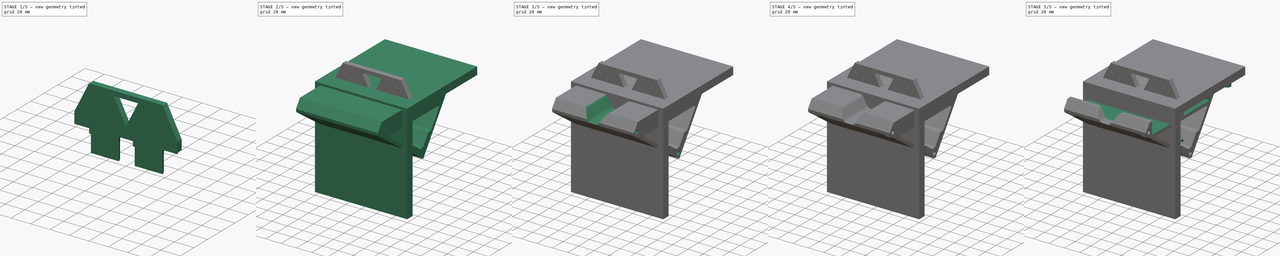
[diagram: build sequence overview — one tinted view per stage of 5, left to right]
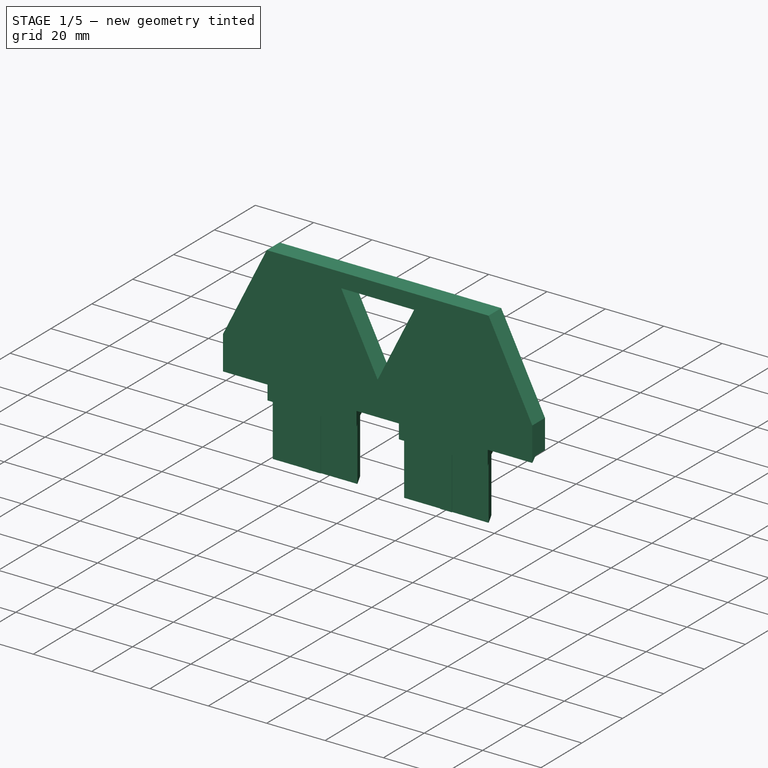
[diagram: stage 1 of 5 — iso view after this stage's code; geometry added in this stage tinted green]
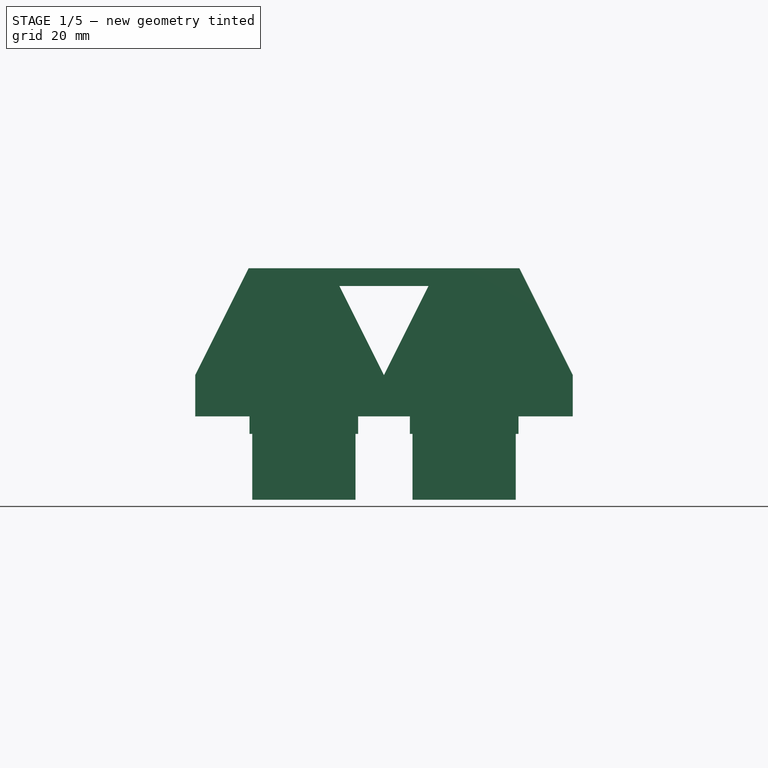
[diagram: stage 1 of 5 — front view after this stage's code; geometry added in this stage tinted green]
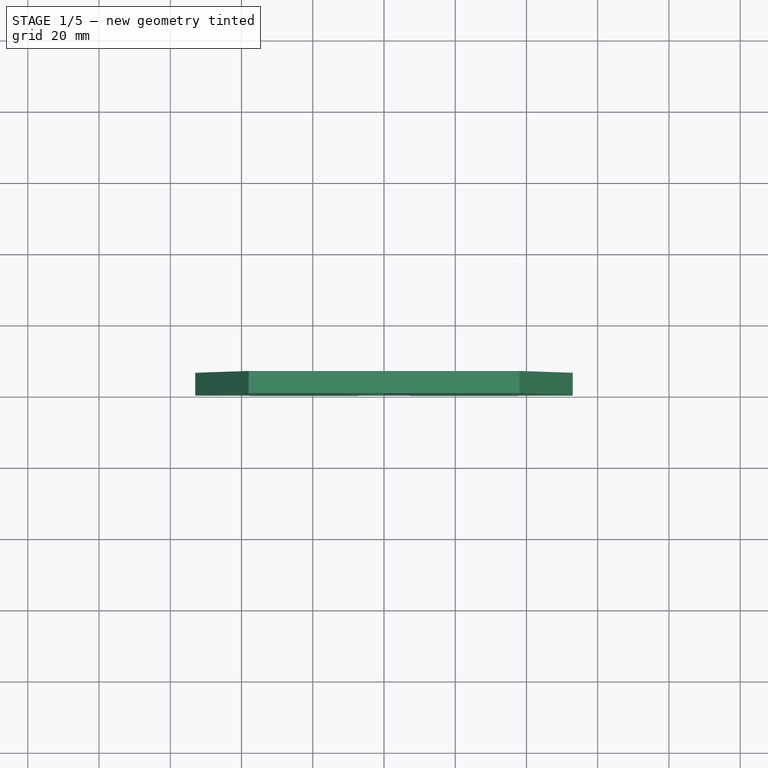
[diagram: stage 1 of 5 — top view after this stage's code; geometry added in this stage tinted green]
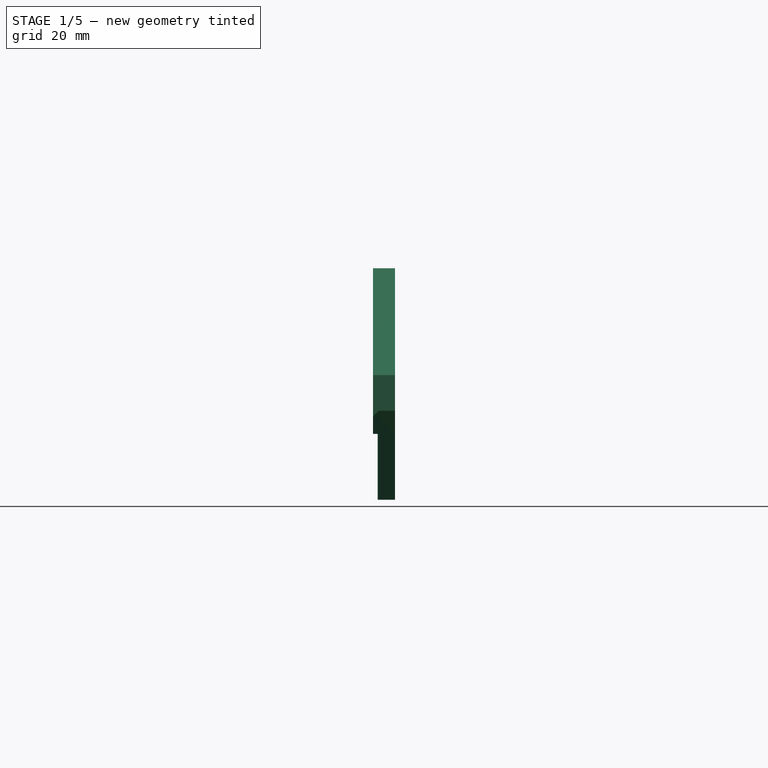
[diagram: stage 1 of 5 — right view after this stage's code; geometry added in this stage tinted green]
FCSTD DOCUMENT  (FreeCAD 0.19R)
Label: module_display_stand_dual
License: All rights reserved
LicenseURL: http://en.wikipedia.org/wiki/All_rights_reserved
objects: Sketcher::SketchObject×23, PartDesign::Pad×15, PartDesign::Pocket×8, PartDesign::Chamfer×8, PartDesign::Body×6, PartDesign::Mirrored×3, PartDesign::Boolean×2
note: 96 computed .brp shape members not serialized (recipe doc carries the construction recipe); baked Part::Feature solids carry a one-line shape summary decoded from their .brp

FEATURE [Sketcher::SketchObject] Sketch033
  FullyConstrained = true
  MapMode = 5
  Placement = pos=(0,0,0) rot=(1,0,0;1.5708rad)
  Support = -> [XZ_Plane007]
  sketch-geometry (16):
    g0: LineSegment StartX=-53 StartY=40 StartZ=0 EndX=53 EndY=40 EndZ=0
    g1: LineSegment StartX=53 StartY=40 StartZ=0 EndX=53 EndY=-25 EndZ=0
    g2: LineSegment StartX=53 StartY=-25 StartZ=0 EndX=-53 EndY=-25 EndZ=0
    g3: LineSegment StartX=-53 StartY=-25 StartZ=0 EndX=-53 EndY=40 EndZ=0
    g4: LineSegment StartX=-53 StartY=40 StartZ=0 EndX=0 EndY=7.1e-15 EndZ=0
    g5: LineSegment StartX=0 StartY=7.1e-15 StartZ=0 EndX=53 EndY=40 EndZ=0
    g6: LineSegment StartX=-53 StartY=-25 StartZ=0 EndX=-53 EndY=10 EndZ=0
    g7: LineSegment StartX=53 StartY=-25 StartZ=0 EndX=53 EndY=10 EndZ=0
    g8: LineSegment StartX=-53 StartY=10 StartZ=0 EndX=-38 EndY=40 EndZ=0
    g9: LineSegment StartX=-38 StartY=40 StartZ=0 EndX=38 EndY=40 EndZ=0
    g10: LineSegment StartX=38 StartY=40 StartZ=0 EndX=53 EndY=10 EndZ=0
    g11: LineSegment StartX=-38 StartY=40 StartZ=0 EndX=-38 EndY=33.6 EndZ=0
    g12: LineSegment StartX=-38 StartY=33.6 StartZ=0 EndX=-41.2 EndY=33.6 EndZ=0
    g13: LineSegment StartX=0 StartY=10 StartZ=0 EndX=-12.5 EndY=35 EndZ=0
    g14: LineSegment StartX=-12.5 StartY=35 StartZ=0 EndX=12.5 EndY=35 EndZ=0
    g15: LineSegment StartX=12.5 StartY=35 StartZ=0 EndX=0 EndY=10 EndZ=0
  constraints (45):
    c: Coincident(g0,g1)
    c: Coincident(g1,g2)
    c: Coincident(g2,g3)
    c: Coincident(g3,g0)
    c: Horizontal(g0)
    c: Horizontal(g2)
    c: Vertical(g1)
    c: Vertical(g3)
    c: Coincident(g0,g4)
    c: Coincident(g4,g-1)
    c: Coincident(g4,g5)
    c: Coincident(g5,g0)
    c: Equal(g5,g4)
    c: DistanceX(g0,g0) = 106
    c: DistanceY(g2,g-1) = 25
    c: Coincident(g2,g6)
    c: Coincident(g2,g7)
    c: Vertical(g7)
    c: Vertical(g6)
    c: Coincident(g8,g6)
    c: PointOnObject(g8,g0)
    c: Coincident(g9,g8)
    c: Coincident(g10,g9)
    c: Coincident(g10,g7)
    c: PointOnObject(g9,g0)
    c: Equal(g10,g8)
    c: Coincident(g11,g8)
    c: Vertical(g11)
    c: Coincident(g12,g11)
    c: PointOnObject(g12,g8)
    c: Horizontal(g12)
    c: DistanceY(g11,g11) = 6.4
    c: DistanceX(g12,g12) = 3.2
    c: DistanceY(g-1,g8) = 40
    c: PointOnObject(g13,g-2)
    c: Coincident(g13,g14)
    c: Horizontal(g14)
    c: Coincident(g14,g15)
    c: Coincident(g15,g13)
    c: Parallel(g13,g10)
    c: Parallel(g15,g8)
    c: DistanceY(g14,g9) = 5
    c: DistanceY(g-1,g13) = 10
    c: Equal(g7,g6)
    c: DistanceY(g-1,g6) = 10
FEATURE [PartDesign::Pad] Pad013
  Direction = (1,1,1)
  Length = 6.2
  Length2 = 100
  Placement = pos=(0,0,0) rot=(1,0,0;1.5708rad)
  Profile = -> Sketch033
  Reversed = true
  Type = 0
FEATURE [Sketcher::SketchObject] Sketch034
  FullyConstrained = true
  MapMode = 5
  Placement = pos=(0,0,0) rot=(1,0,0;1.5708rad)
  Support = -> [XZ_Plane007]
  sketch-geometry (5):
    g0: Circle CenterX=-33.5 CenterY=54 CenterZ=0 NormalX=0 NormalY=0 NormalZ=1 AngleXU=0 Radius=4.5
    g1: Circle CenterX=33.5 CenterY=54 CenterZ=0 NormalX=0 NormalY=0 NormalZ=1 AngleXU=0 Radius=4.5
    g2: LineSegment StartX=-33.5 StartY=54 StartZ=0 EndX=33.5 EndY=54 EndZ=0
    g3: LineSegment StartX=33.5 StartY=54 StartZ=0 EndX=0 EndY=0 EndZ=0
    g4: LineSegment StartX=0 StartY=0 StartZ=0 EndX=-33.5 EndY=54 EndZ=0
  constraints (12):
    c: Diameter(g1) = 9
    c: Equal(g1,g0)
    c: Coincident(g2,g0)
    c: Coincident(g2,g1)
    c: Horizontal(g2)
    c: Coincident(g2,g3)
    c: Coincident(g3,g-1)
    c: Coincident(g3,g4)
    c: Coincident(g4,g2)
    c: Equal(g4,g3)
    c: DistanceX(g2,g2) = 67
    c: DistanceY(g4,g4) = 54
FEATURE [PartDesign::Pocket] Pocket020
  BaseFeature = -> Pad013
  Length = 0.5
  Length2 = 100
  Placement = pos=(0,0,0) rot=(1,0,0;1.5708rad)
  Profile = -> Sketch034
  Type = 0
FEATURE [Sketcher::SketchObject] Sketch035
  FullyConstrained = true
  MapMode = 5
  Placement = pos=(0,0,0) rot=(0,1,0;3.14159rad)
  Support = -> [XY_Plane007]
  sketch-geometry (11):
    g0: LineSegment StartX=-37.75 StartY=0 StartZ=0 EndX=-34.55 EndY=6.4 EndZ=0
    g1: LineSegment StartX=-34.55 StartY=6.4 StartZ=0 EndX=-10.45 EndY=6.4 EndZ=0
    g2: LineSegment StartX=-10.45 StartY=6.4 StartZ=0 EndX=-7.25 EndY=0 EndZ=0
    g3: LineSegment StartX=7.25 StartY=0 StartZ=0 EndX=10.45 EndY=6.4 EndZ=0
    g4: LineSegment StartX=10.45 StartY=6.4 StartZ=0 EndX=34.55 EndY=6.4 EndZ=0
    g5: LineSegment StartX=34.55 StartY=6.4 StartZ=0 EndX=37.75 EndY=0 EndZ=0
    g6: LineSegment StartX=37.75 StartY=0 StartZ=0 EndX=7.25 EndY=0 EndZ=0
    g7: LineSegment StartX=-37.75 StartY=0 StartZ=0 EndX=-7.25 EndY=0 EndZ=0
    g8: LineSegment StartX=-10.45 StartY=6.4 StartZ=0 EndX=0 EndY=-9e-16 EndZ=0
    g9: LineSegment StartX=0 StartY=-9e-16 StartZ=0 EndX=10.45 EndY=6.4 EndZ=0
    g10: Circle CenterX=0 CenterY=0 CenterZ=0 NormalX=0 NormalY=0 NormalZ=1 AngleXU=0 Radius=100
  constraints (30):
    c: PointOnObject(g0,g-1)
    c: Coincident(g0,g1)
    c: Horizontal(g1)
    c: Coincident(g1,g2)
    c: PointOnObject(g2,g-1)
    c: PointOnObject(g3,g-1)
    c: Coincident(g3,g4)
    c: Horizontal(g4)
    c: Coincident(g4,g5)
    c: PointOnObject(g5,g-1)
    c: Coincident(g5,g6)
    c: Coincident(g6,g3)
    c: Coincident(g7,g0)
    c: Coincident(g7,g2)
    c: Equal(g7,g6)
    c: Equal(g3,g5)
    c: Equal(g5,g2)
    c: Equal(g2,g0)
    c: Equal(g1,g4)
    c: DistanceY(g0,g0) = 6.4
    c: DistanceX(g0,g0) = 3.2
    c: Coincident(g1,g8)
    c: Coincident(g8,g-1)
    c: Coincident(g8,g9)
    c: Coincident(g9,g3)
    c: Equal(g8,g9)
    c: DistanceX(g2,g3) = 14.5
    c: DistanceX(g0,g5) = 75.5
    c: Coincident(g10,g-1)
    c: Radius(g10) = 100
FEATURE [PartDesign::Pocket] Pocket021
  BaseFeature = -> Pocket020
  Length = 5
  Length2 = 100
  Placement = pos=(0,0,0) rot=(1,0,0;1.5708rad)
  Profile = -> Sketch035
  Reversed = true
  Type = 1
FEATURE [Sketcher::SketchObject] Sketch036
  AttachmentOffset = pos=(0,0,-6.5) rot=(0,0,1;0rad)
  FullyConstrained = true
  MapMode = 5
  Placement = pos=(0,0,-6.5) rot=(0,0,1;0rad)
  Support = -> [XY_Plane007]
  sketch-geometry (16):
    g0: LineSegment StartX=-50 StartY=0 StartZ=0 EndX=50 EndY=0 EndZ=0
    g1: LineSegment StartX=50 StartY=0 StartZ=0 EndX=50 EndY=1.5 EndZ=0
    g2: LineSegment StartX=-50 StartY=1.5 StartZ=0 EndX=-50 EndY=0 EndZ=0
    g3: LineSegment StartX=-50 StartY=1.5 StartZ=0 EndX=0 EndY=0 EndZ=0
    g4: LineSegment StartX=0 StartY=0 StartZ=0 EndX=50 EndY=1.5 EndZ=0
    g5: LineSegment StartX=-20.5 StartY=1.5 StartZ=0 EndX=-20.5 EndY=1.3 EndZ=0
    g6: LineSegment StartX=-20.5 StartY=1.3 StartZ=0 EndX=-24.5 EndY=1.3 EndZ=0
    g7: LineSegment StartX=-24.5 StartY=1.3 StartZ=0 EndX=-24.5 EndY=1.5 EndZ=0
    g8: LineSegment StartX=-24.5 StartY=1.5 StartZ=0 EndX=-50 EndY=1.5 EndZ=0
    g9: LineSegment StartX=20.5 StartY=1.5 StartZ=0 EndX=-20.5 EndY=1.5 EndZ=0
    g10: LineSegment StartX=20.5 StartY=1.3 StartZ=0 EndX=20.5 EndY=1.5 EndZ=0
    g11: LineSegment StartX=24.5 StartY=1.3 StartZ=0 EndX=20.5 EndY=1.3 EndZ=0
    g12: LineSegment StartX=50 StartY=1.5 StartZ=0 EndX=24.5 EndY=1.5 EndZ=0
    g13: LineSegment StartX=24.5 StartY=1.5 StartZ=0 EndX=24.5 EndY=1.3 EndZ=0
    g14: LineSegment StartX=-20.5 StartY=1.3 StartZ=0 EndX=-22.5 EndY=2e-16 EndZ=0
    g15: LineSegment StartX=-22.5 StartY=2e-16 StartZ=0 EndX=-24.5 EndY=1.3 EndZ=0
  constraints (45):
    c: Coincident(g0,g1)
    c: Coincident(g1,g12)
    c: Coincident(g8,g2)
    c: Coincident(g2,g0)
    c: Horizontal(g0)
    c: Vertical(g1)
    c: Vertical(g2)
    c: PointOnObject(g0,g-1)
    c: Coincident(g8,g3)
    c: Coincident(g3,g-1)
    c: Coincident(g3,g4)
    c: Coincident(g4,g1)
    c: Equal(g3,g4)
    c: DistanceX(g8,g12) = 100
    c: DistanceY(g1,g1) = 1.5
    c: Coincident(g5,g6)
    c: Coincident(g9,g5)
    c: Coincident(g6,g7)
    c: Horizontal(g6)
    c: Horizontal(g8)
    c: Horizontal(g9)
    c: Coincident(g11,g10)
    c: Coincident(g13,g11)
    c: Horizontal(g11)
    c: Coincident(g12,g13)
    c: Horizontal(g12)
    c: Vertical(g7)
    c: Vertical(g5)
    c: Vertical(g10)
    c: Vertical(g13)
    c: Equal(g7,g5)
    c: Equal(g10,g13)
    c: PointOnObject(g14,g0)
    c: Coincident(g14,g15)
    c: Coincident(g15,g6)
    c: Equal(g15,g14)
    c: DistanceX(g14,g3) = 22.5
    c: Equal(g12,g8)
    c: Coincident(g14,g5)
    c: Coincident(g8,g7)
    c: DistanceY(g7,g7) = 0.2
    c: DistanceX(g6,g6) = 4
    c: Coincident(g9,g10)
    c: Equal(g11,g6)
    c: Equal(g10,g5)
FEATURE [PartDesign::Pocket] Pocket022
  BaseFeature = -> Pocket021
  Length = 5
  Length2 = 100
  Placement = pos=(0,0,0) rot=(1,0,0;1.5708rad)
  Profile = -> Sketch036
  Type = 1
FEATURE [Sketcher::SketchObject] Sketch037
  FullyConstrained = true
  MapMode = 5
  Placement = pos=(0,0,0) rot=(1,0,0;1.5708rad)
  Support = -> [XZ_Plane007]
  sketch-geometry (6):
    g0: LineSegment StartX=-37.75 StartY=0 StartZ=0 EndX=-34.55 EndY=-6.4 EndZ=0
    g1: LineSegment StartX=-34.55 StartY=0 StartZ=0 EndX=-34.55 EndY=-6.4 EndZ=0
    g2: LineSegment StartX=-37.75 StartY=0 StartZ=0 EndX=-34.55 EndY=0 EndZ=0
    g3: LineSegment StartX=-10.45 StartY=0 StartZ=0 EndX=-10.45 EndY=-6.4 EndZ=0
    g4: LineSegment StartX=-10.45 StartY=-6.4 StartZ=0 EndX=-7.25 EndY=0 EndZ=0
    g5: LineSegment StartX=-7.25 StartY=0 StartZ=0 EndX=-10.45 EndY=0 EndZ=0
  constraints (18):
    c: PointOnObject(g0,g-1)
    c: PointOnObject(g1,g-1)
    c: Coincident(g1,g0)
    c: Vertical(g1)
    c: Coincident(g2,g0)
    c: Coincident(g2,g1)
    c: DistanceX(g2,g2) = 3.2
    c: DistanceY(g1,g1) = 6.4
    c: DistanceX(g0,g-1) = 37.75
    c: PointOnObject(g3,g-1)
    c: Vertical(g3)
    c: Coincident(g3,g4)
    c: Coincident(g4,g5)
    c: Coincident(g5,g3)
    c: PointOnObject(g4,g-1)
    c: Equal(g3,g1)
    c: Equal(g2,g5)
    c: DistanceX(g4,g-1) = 7.25
FEATURE [PartDesign::Pad] Pad014
  BaseFeature = -> Pocket022
  Direction = (0,-1,-2e-16)
  Length = 6.2
  Length2 = 100
  Placement = pos=(0,0,0) rot=(1,0,0;1.5708rad)
  Profile = -> Sketch037
  Refine = true
  Reversed = true
  Type = 0
FEATURE [PartDesign::Mirrored] Mirrored002
  BaseFeature = -> Pad014
  MirrorPlane = -> Sketch037 [V_Axis]
  Originals = -> [Pad014]
  Placement = pos=(0,0,0) rot=(1,0,0;1.5708rad)
  Refine = true
FEATURE [Sketcher::SketchObject] Sketch038
  FullyConstrained = true
  MapMode = 5
  Placement = pos=(0,0,0) rot=(1,0,0;1.5708rad)
  Support = -> [XZ_Plane007]
  sketch-geometry (7):
    g0: LineSegment StartX=-34 StartY=34 StartZ=0 EndX=34 EndY=34 EndZ=0
    g1: LineSegment StartX=34 StartY=34 StartZ=0 EndX=0 EndY=0 EndZ=0
    g2: LineSegment StartX=0 StartY=0 StartZ=0 EndX=-34 EndY=34 EndZ=0
    g3: Circle CenterX=-34 CenterY=34 CenterZ=0 NormalX=0 NormalY=0 NormalZ=1 AngleXU=0 Radius=4.6
    g4: Circle CenterX=34 CenterY=34 CenterZ=0 NormalX=0 NormalY=0 NormalZ=1 AngleXU=0 Radius=4.6
    g5: Circle CenterX=-34 CenterY=34 CenterZ=0 NormalX=0 NormalY=0 NormalZ=1 AngleXU=0 Radius=5.25
    g6: Circle CenterX=34 CenterY=34 CenterZ=0 NormalX=0 NormalY=0 NormalZ=1 AngleXU=0 Radius=5.25
  constraints (16):
    c: Horizontal(g0)
    c: Coincident(g0,g1)
    c: Coincident(g1,g-1)
    c: Coincident(g1,g2)
    c: Coincident(g2,g0)
    c: Coincident(g3,g0)
    c: Coincident(g4,g0)
    c: Diameter(g4) = 9.2
    c: Equal(g4,g3)
    c: Equal(g2,g1)
    c: DistanceX(g0,g0) = 68
    c: DistanceY(g-1,g3) = 34
    c: Coincident(g5,g3)
    c: Coincident(g6,g4)
    c: Diameter(g6) = 10.5
    c: Equal(g6,g5)
FEATURE [Sketcher::SketchObject] Sketch
  FullyConstrained = true
  MapMode = 5
  Placement = pos=(0,0,0) rot=(0.57735,0.57735,0.57735;2.0944rad)
  Support = -> [YZ_Plane007]
  sketch-geometry (3):
    g0: LineSegment StartX=1.6 StartY=0 StartZ=0 EndX=0 EndY=0 EndZ=0
    g1: LineSegment StartX=0 StartY=0 StartZ=0 EndX=0 EndY=-1.6 EndZ=0
    g2: LineSegment StartX=0 StartY=-1.6 StartZ=0 EndX=1.6 EndY=0 EndZ=0
  constraints (8):
    c: PointOnObject(g0,g-1)
    c: Coincident(g0,g-1)
    c: Coincident(g0,g1)
    c: PointOnObject(g1,g-2)
    c: Coincident(g1,g2)
    c: Coincident(g2,g0)
    c: Equal(g0,g1)
    c: DistanceY(g1,g1) = 1.6
FEATURE [PartDesign::Pad] Pad
  BaseFeature = -> Mirrored002
  Direction = (1,-2e-16,3e-16)
  Length = 106
  Length2 = 100
  Midplane = true
  Placement = pos=(0,0,0) rot=(1,0,0;1.5708rad)
  Profile = -> Sketch
  Refine = true
  Type = 0
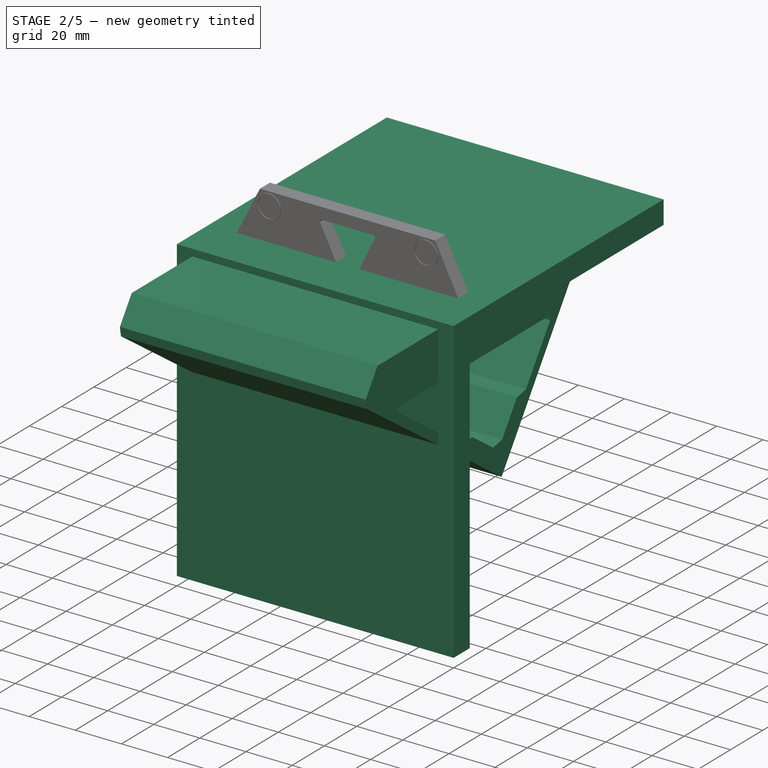
[diagram: stage 2 of 5 — iso view after this stage's code; geometry added in this stage tinted green]
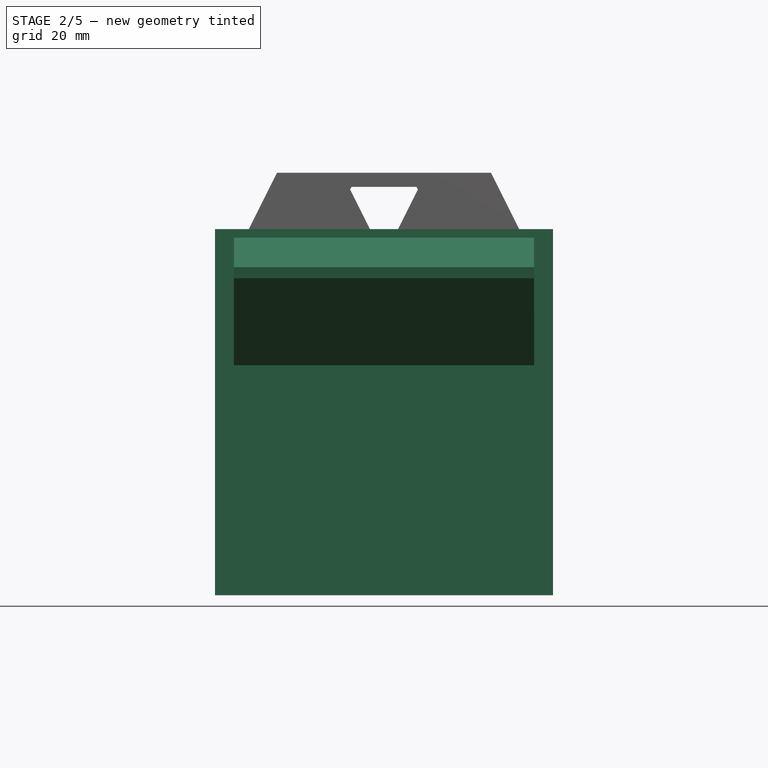
[diagram: stage 2 of 5 — front view after this stage's code; geometry added in this stage tinted green]
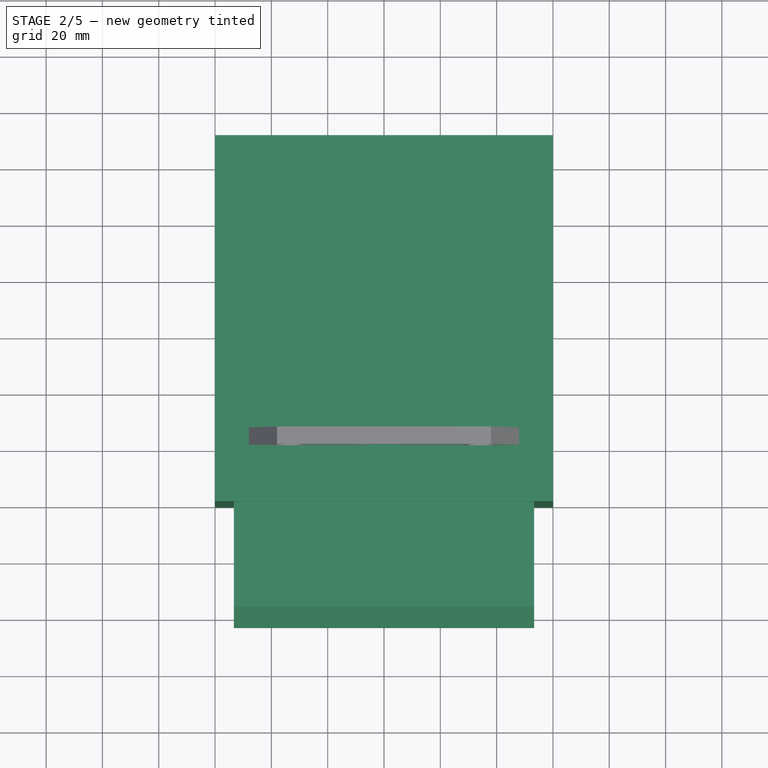
[diagram: stage 2 of 5 — top view after this stage's code; geometry added in this stage tinted green]
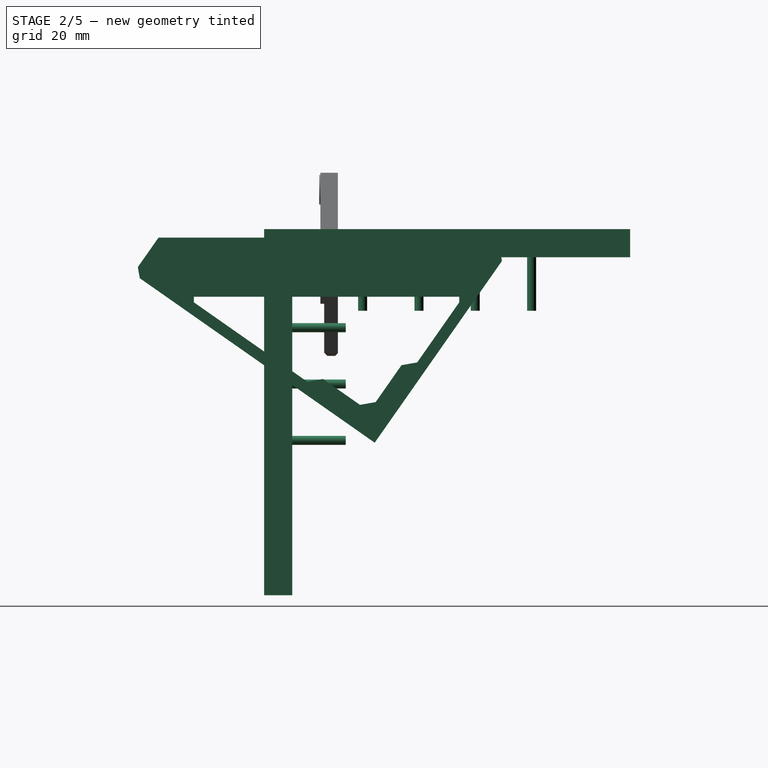
[diagram: stage 2 of 5 — right view after this stage's code; geometry added in this stage tinted green]
FEATURE [Sketcher::SketchObject] Sketch017
  FullyConstrained = true
  MapMode = 5
  Placement = pos=(0,0,0) rot=(0.57735,0.57735,0.57735;2.0944rad)
  Support = -> [YZ_Plane002]
  sketch-geometry (37):
    g0: LineSegment StartX=-53.5 StartY=17 StartZ=0 EndX=-53.5 EndY=0 EndZ=0
    g1: LineSegment StartX=-53.5 StartY=0 StartZ=0 EndX=53.5 EndY=0 EndZ=0
    g2: LineSegment StartX=53.5 StartY=0 StartZ=0 EndX=53.5 EndY=17 EndZ=0
    g3: LineSegment StartX=-53.5 StartY=17 StartZ=0 EndX=-57.5 EndY=17 EndZ=0
    g4: LineSegment StartX=-57.5 StartY=17 StartZ=0 EndX=-64.8434 EndY=6.51252 EndZ=0
    g5: LineSegment StartX=63.763 StartY=12.6146 StartZ=0 EndX=57.5 EndY=17 EndZ=0
    g6: LineSegment StartX=57.5 StartY=17 StartZ=0 EndX=53.5 EndY=17 EndZ=0
    g7: LineSegment StartX=-53.5 StartY=0 StartZ=0 EndX=0 EndY=0 EndZ=0
    g8: LineSegment StartX=0 StartY=0 StartZ=0 EndX=53.5 EndY=0 EndZ=0
    g9: LineSegment StartX=-53.5 StartY=0 StartZ=0 EndX=-55.7943 EndY=-3.27661 EndZ=0
    g10: LineSegment StartX=53.5 StartY=0 StartZ=0 EndX=56.7766 EndY=-2.29431 EndZ=0
    g11: LineSegment StartX=-44.9311 StartY=-4 StartZ=0 EndX=49.2988 EndY=-4 EndZ=0
    g12: LineSegment StartX=0 StartY=0 StartZ=0 EndX=0 EndY=-4 EndZ=0
    g13: LineSegment StartX=18.2981 StartY=-50.2736 StartZ=0 EndX=16.0038 EndY=-53.5502 EndZ=0
    g14: LineSegment StartX=16.0038 StartY=-53.5502 StartZ=0 EndX=18.2981 EndY=-50.2736 EndZ=0
    g15: LineSegment StartX=18.2981 StartY=-50.2736 StartZ=0 EndX=21.5747 EndY=-52.5679 EndZ=0
    g16: LineSegment StartX=-64.1488 StartY=2.57329 StartZ=0 EndX=19.2804 EndY=-55.8445 EndZ=0
    g17: LineSegment StartX=19.2804 StartY=-55.8445 StartZ=0 EndX=64.4576 EndY=8.67534 EndZ=0
    g18: LineSegment StartX=-64.1488 StartY=2.57329 StartZ=0 EndX=-64.8434 EndY=6.51252 EndZ=0
    g19: LineSegment StartX=63.763 StartY=12.6146 StartZ=0 EndX=64.4576 EndY=8.67534 EndZ=0
    g20: LineSegment StartX=-44.9311 StartY=-4 StartZ=0 EndX=49.2988 EndY=-4 EndZ=0
    g21: LineSegment StartX=49.2988 StartY=-4 StartZ=0 EndX=49.2988 EndY=-6 EndZ=0
    g22: LineSegment StartX=49.2988 StartY=-6 StartZ=0 EndX=18.2981 EndY=-50.2736 EndZ=0
    g23: LineSegment StartX=18.2981 StartY=-50.2736 StartZ=0 EndX=-44.9311 EndY=-6 EndZ=0
    g24: LineSegment StartX=-44.9311 StartY=-6 StartZ=0 EndX=-44.9311 EndY=-4 EndZ=0
    g25: LineSegment StartX=-44.9311 StartY=-6 StartZ=0 EndX=-4.63818 EndY=-34.2134 EndZ=0
    g26: LineSegment StartX=-4.63818 StartY=-34.2134 StartZ=0 EndX=0.932734 EndY=-33.2311 EndZ=0
    g27: LineSegment StartX=0.932734 StartY=-33.2311 StartZ=0 EndX=17.3158 EndY=-44.7026 EndZ=0
    g28: LineSegment StartX=17.3158 StartY=-44.7026 StartZ=0 EndX=28.7873 EndY=-28.3196 EndZ=0
    g29: LineSegment StartX=28.7873 StartY=-28.3196 StartZ=0 EndX=34.3582 EndY=-27.3373 EndZ=0
    g30: LineSegment StartX=49.2988 StartY=-6 StartZ=0 EndX=34.3582 EndY=-27.3373 EndZ=0
    g31: LineSegment StartX=15.0215 StartY=-47.9792 StartZ=0 EndX=17.3158 EndY=-44.7026 EndZ=0
    g32: LineSegment StartX=17.3158 StartY=-44.7026 StartZ=0 EndX=20.5924 EndY=-46.9969 EndZ=0
    g33: LineSegment StartX=0.932734 StartY=-33.2311 StartZ=0 EndX=14.0392 EndY=-42.4083 EndZ=0
    g34: LineSegment StartX=14.0392 StartY=-42.4083 StartZ=0 EndX=19.6101 EndY=-41.426 EndZ=0
    g35: LineSegment StartX=19.6101 StartY=-41.426 StartZ=0 EndX=28.7873 EndY=-28.3196 EndZ=0
    g36: LineSegment StartX=57.5 StartY=17 StartZ=0 EndX=-57.5 EndY=17 EndZ=0
  constraints (106):
    c: PointOnObject(g0,g-1)
    c: Vertical(g0)
    c: Coincident(g0,g1)
    c: PointOnObject(g1,g-1)
    c: Coincident(g1,g2)
    c: Vertical(g2)
    c: Coincident(g0,g3)
    c: Horizontal(g3)
    c: Coincident(g3,g4)
    c: Coincident(g5,g6)
    c: Coincident(g6,g2)
    c: Horizontal(g6)
    c: Equal(g3,g6)
    c: DistanceX(g3,g3) = 4
    c: DistanceX(g1,g1) = 107
    c: Equal(g0,g2)
    c: DistanceY(g0,g0) = 17
    c: Coincident(g0,g7)
    c: Coincident(g7,g8)
    c: Coincident(g8,g1)
    c: Equal(g8,g7)
    c: Coincident(g-1,g7)
    c: Coincident(g0,g9)
    c: Coincident(g1,g10)
    c: Equal(g9,g10)
    c: Distance(g10) = 4
    c: Horizontal(g11)
    c: Coincident(g12,g-1)
    c: PointOnObject(g12,g11)
    c: Vertical(g12)
    c: Coincident(g13,g14)
    c: Coincident(g14,g13)
    c: Equal(g13,g15)
    c: Equal(g15,g12)
    c: DistanceY(g12,g12) = 4
    c: Coincident(g16,g17)
    c: PointOnObject(g10,g17)
    c: PointOnObject(g15,g17)
    c: PointOnObject(g13,g16)
    c: PointOnObject(g9,g16)
    c: Perpendicular(g16,g9)
    c: Perpendicular(g10,g17)
    c: Perpendicular(g17,g5)
    c: Perpendicular(g16,g4)
    c: Angle(g16,g1) = 0.610865
    c: Coincident(g18,g16)
    c: Coincident(g18,g4)
    c: Coincident(g19,g5)
    c: Coincident(g19,g17)
    c: Perpendicular(g16,g17)
    c: Angle(g16,g18) = 2.35619
    c: Angle(g19,g17) = 2.35619
    c: Equal(g19,g18)
    c: Distance(g18) = 4
    c: PointOnObject(g20,g11)
    c: Coincident(g20,g21)
    c: Vertical(g21)
    c: Coincident(g21,g22)
    c: Coincident(g23,g24)
    c: Coincident(g24,g20)
    c: Vertical(g24)
    c: PointOnObject(g20,g11)
    c: Equal(g24,g21)
    c: Parallel(g23,g16)
    c: Parallel(g22,g17)
    c: DistanceY(g24,g24) = 2
    c: Coincident(g24,g25)
    c: Coincident(g25,g26)
    c: Coincident(g26,g27)
    c: Coincident(g28,g29)
    c: Coincident(g30,g21)
    c: Coincident(g30,g29)
    c: Distance(g29,g13) = 32
    c: Coincident(g28,g27)
    c: Perpendicular(g27,g28)
    c: PointOnObject(g25,g23)
    c: Coincident(g22,g13)
    c: PointOnObject(g29,g22)
    c: Angle(g29,g22) = 0.785398
    c: Coincident(g15,g13)
    c: Coincident(g23,g13)
    c: Perpendicular(g22,g15)
    c: Perpendicular(g23,g13)
    c: PointOnObject(g31,g23)
    c: Coincident(g31,g27)
    c: Coincident(g31,g32)
    c: PointOnObject(g32,g22)
    c: Perpendicular(g23,g31)
    c: Perpendicular(g22,g32)
    c: Perpendicular(g28,g32)
    c: Equal(g31,g32)
    c: Distance(g32) = 4
    c: Equal(g27,g28)
    c: PointOnObject(g11,g24)
    c: PointOnObject(g11,g21)
    c: Coincident(g33,g26)
    c: PointOnObject(g33,g27)
    c: Coincident(g34,g33)
    c: PointOnObject(g34,g28)
    c: Coincident(g35,g34)
    c: Coincident(g35,g29)
    c: Parallel(g26,g34)
    c: Parallel(g34,g29)
    c: Equal(g34,g29)
    c: Coincident(g36,g5)
    c: Coincident(g36,g4)
FEATURE [PartDesign::Pad] Pad003  label="Profile"
  Direction = (1,1,1)
  Length = 106.6
  Length2 = 100
  Midplane = true
  Placement = pos=(0,0,0) rot=(0.57735,0.57735,0.57735;2.0944rad)
  Profile = -> Sketch017
  Type = 0
FEATURE [PartDesign::Body] Body008  label="Pin"
  Group = -> [Sketch041,Pad015,Chamfer015]
  Origin = -> Origin008
  Tip = -> Chamfer015
FEATURE [Sketcher::SketchObject] Sketch042
  AttachmentOffset = pos=(0,0,-10) rot=(0,0,1;0rad)
  FullyConstrained = true
  MapMode = 5
  Placement = pos=(0,0,10) rot=(0,1,0;3.14159rad)
  Support = -> [XY_Plane009]
  sketch-geometry (23):
    g0: LineSegment StartX=0 StartY=55 StartZ=0 EndX=-20 EndY=35 EndZ=0
    g1: LineSegment StartX=-20 StartY=35 StartZ=0 EndX=0 EndY=15 EndZ=0
    g2: LineSegment StartX=-6e-16 StartY=15 StartZ=0 EndX=20 EndY=35 EndZ=0
    g3: LineSegment StartX=20 StartY=35 StartZ=0 EndX=0 EndY=55 EndZ=0
    g4: Circle CenterX=0 CenterY=35 CenterZ=0 NormalX=0 NormalY=0 NormalZ=1 AngleXU=0 Radius=20
    g5: LineSegment StartX=-40 StartY=55 StartZ=0 EndX=-20 EndY=35 EndZ=0
    g6: LineSegment StartX=-20 StartY=35 StartZ=0 EndX=-40 EndY=15 EndZ=0
    g7: LineSegment StartX=20 StartY=35 StartZ=0 EndX=40 EndY=55 EndZ=0
    g8: LineSegment StartX=20 StartY=35 StartZ=0 EndX=40 EndY=15 EndZ=0
    g9: LineSegment StartX=0 StartY=55 StartZ=0 EndX=20 EndY=75 EndZ=0
    g10: LineSegment StartX=20 StartY=75 StartZ=0 EndX=40 EndY=55 EndZ=0
    g11: LineSegment StartX=-40 StartY=55 StartZ=0 EndX=-20 EndY=75 EndZ=0
    g12: LineSegment StartX=-20 StartY=75 StartZ=0 EndX=0 EndY=55 EndZ=0
    g13: Circle CenterX=-40 CenterY=15 CenterZ=0 NormalX=0 NormalY=0 NormalZ=1 AngleXU=0 Radius=1.6
    g14: Circle CenterX=-40 CenterY=55 CenterZ=0 NormalX=0 NormalY=0 NormalZ=1 AngleXU=0 Radius=1.6
    g15: Circle CenterX=-20 CenterY=35 CenterZ=0 NormalX=0 NormalY=0 NormalZ=1 AngleXU=0 Radius=1.6
    g16: Circle CenterX=-20 CenterY=75 CenterZ=0 NormalX=0 NormalY=0 NormalZ=1 AngleXU=0 Radius=1.6
    g17: Circle CenterX=20 CenterY=75 CenterZ=0 NormalX=0 NormalY=0 NormalZ=1 AngleXU=0 Radius=1.6
    g18: Circle CenterX=40 CenterY=55 CenterZ=0 NormalX=0 NormalY=0 NormalZ=1 AngleXU=0 Radius=1.6
    g19: Circle CenterX=40 CenterY=15 CenterZ=0 NormalX=0 NormalY=0 NormalZ=1 AngleXU=0 Radius=1.6
    g20: Circle CenterX=20 CenterY=35 CenterZ=0 NormalX=0 NormalY=0 NormalZ=1 AngleXU=0 Radius=1.6
    g21: Circle CenterX=0 CenterY=55 CenterZ=0 NormalX=0 NormalY=0 NormalZ=1 AngleXU=0 Radius=1.6
    g22: Circle CenterX=-6e-16 CenterY=15 CenterZ=0 NormalX=0 NormalY=0 NormalZ=1 AngleXU=0 Radius=1.6
  constraints (49):
    c: Coincident(g0,g1)
    c: Coincident(g1,g2)
    c: Coincident(g2,g3)
    c: Coincident(g3,g0)
    c: Equal(g0,g1)
    c: Equal(g0,g2)
    c: Equal(g0,g3)
    c: PointOnObject(g0,g4)
    c: PointOnObject(g1,g4)
    c: PointOnObject(g2,g4)
    c: PointOnObject(g3,g4)
    c: PointOnObject(g4,g-2)
    c: PointOnObject(g3,g-2)
    c: Coincident(g5,g0)
    c: Coincident(g5,g6)
    c: Coincident(g2,g7)
    c: Coincident(g2,g8)
    c: Coincident(g0,g9)
    c: Coincident(g9,g10)
    c: Coincident(g10,g7)
    c: Coincident(g5,g11)
    c: Coincident(g11,g12)
    c: Coincident(g12,g0)
    c: Parallel(g8,g12)
    c: Parallel(g12,g5)
    c: Parallel(g5,g10)
    c: Parallel(g10,g3)
    c: Parallel(g0,g6)
    c: Parallel(g6,g11)
    c: Parallel(g11,g9)
    c: Parallel(g9,g7)
    c: Equal(g5,g1)
    c: Equal(g9,g1)
    c: Equal(g8,g6)
    c: Equal(g6,g1)
    c: DistanceY(g-1,g1) = 15
    c: DistanceX(g1,g2) = 20
    c: Coincident(g13,g6)
    c: Coincident(g14,g5)
    c: Coincident(g15,g0)
    c: Coincident(g16,g11)
    c: Coincident(g17,g9)
    c: Coincident(g18,g7)
    c: Coincident(g19,g8)
    c: Coincident(g20,g2)
    c: Coincident(g21,g0)
    c: Coincident(g22,g1)
    c: Diameter(g13) = 3.2
    c: Equal(g13, g14-g22) x9
FEATURE [Sketcher::SketchObject] Sketch043
  FullyConstrained = true
  MapMode = 5
  Placement = pos=(0,0,0) rot=(0.57735,0.57735,0.57735;2.0944rad)
  Support = -> [YZ_Plane009]
  sketch-geometry (6):
    g0: LineSegment StartX=-10 StartY=10 StartZ=0 EndX=-10 EndY=-110 EndZ=0
    g1: LineSegment StartX=-10 StartY=-110 StartZ=0 EndX=-20 EndY=-110 EndZ=0
    g2: LineSegment StartX=-20 StartY=-110 StartZ=0 EndX=-20 EndY=20 EndZ=0
    g3: LineSegment StartX=-20 StartY=20 StartZ=0 EndX=110 EndY=20 EndZ=0
    g4: LineSegment StartX=110 StartY=20 StartZ=0 EndX=110 EndY=10 EndZ=0
    g5: LineSegment StartX=110 StartY=10 StartZ=0 EndX=-10 EndY=10 EndZ=0
  constraints (18):
    c: Vertical(g0)
    c: Coincident(g0,g1)
    c: Horizontal(g1)
    c: Coincident(g1,g2)
    c: Vertical(g2)
    c: Coincident(g2,g3)
    c: Horizontal(g3)
    c: Coincident(g3,g4)
    c: Vertical(g4)
    c: Coincident(g4,g5)
    c: Coincident(g5,g0)
    c: Horizontal(g5)
    c: DistanceX(g0,g-1) = 10
    c: DistanceY(g-1,g0) = 10
    c: Equal(g4,g1)
    c: Equal(g0,g5)
    c: DistanceX(g3,g3) = 130
    c: DistanceY(g4,g4) = 10
FEATURE [PartDesign::Pad] Pad016
  Direction = (1,1,1)
  Length = 120
  Length2 = 100
  Midplane = true
  Placement = pos=(0,0,0) rot=(0.57735,0.57735,0.57735;2.0944rad)
  Profile = -> Sketch043
  Type = 0
FEATURE [Sketcher::SketchObject] Sketch044
  AttachmentOffset = pos=(0,0,-10) rot=(0,0,1;0rad)
  FullyConstrained = true
  MapMode = 5
  Placement = pos=(0,-10,-2.2e-15) rot=(0,0.707107,0.707107;3.14159rad)
  Support = -> [XZ_Plane009]
  sketch-geometry (17):
    g0: LineSegment StartX=0 StartY=-15 StartZ=0 EndX=-20 EndY=-35 EndZ=0
    g1: LineSegment StartX=-20 StartY=-35 StartZ=0 EndX=3.6e-15 EndY=-55 EndZ=0
    g2: LineSegment StartX=3.4e-15 StartY=-55 StartZ=0 EndX=20 EndY=-35 EndZ=0
    g3: LineSegment StartX=20 StartY=-35 StartZ=0 EndX=0 EndY=-15 EndZ=0
    g4: Circle CenterX=0 CenterY=-35 CenterZ=0 NormalX=0 NormalY=0 NormalZ=1 AngleXU=0 Radius=20
    g5: Circle CenterX=-20 CenterY=-35 CenterZ=0 NormalX=0 NormalY=0 NormalZ=1 AngleXU=0 Radius=1.6
    g6: Circle CenterX=0 CenterY=-15 CenterZ=0 NormalX=0 NormalY=0 NormalZ=1 AngleXU=0 Radius=1.6
    g7: Circle CenterX=20 CenterY=-35 CenterZ=0 NormalX=0 NormalY=0 NormalZ=1 AngleXU=0 Radius=1.6
    g8: Circle CenterX=3.4e-15 CenterY=-55 CenterZ=0 NormalX=0 NormalY=0 NormalZ=1 AngleXU=0 Radius=1.6
    g9: LineSegment StartX=-40 StartY=-15 StartZ=0 EndX=-20 EndY=-35 EndZ=0
    g10: LineSegment StartX=-20 StartY=-35 StartZ=0 EndX=-40 EndY=-55 EndZ=0
    g11: LineSegment StartX=40 StartY=-15 StartZ=0 EndX=20 EndY=-35 EndZ=0
    g12: LineSegment StartX=20 StartY=-35 StartZ=0 EndX=40 EndY=-55 EndZ=0
    g13: Circle CenterX=-40 CenterY=-15 CenterZ=0 NormalX=0 NormalY=0 NormalZ=1 AngleXU=0 Radius=1.6
    g14: Circle CenterX=-40 CenterY=-55 CenterZ=0 NormalX=0 NormalY=0 NormalZ=1 AngleXU=0 Radius=1.6
    g15: Circle CenterX=40 CenterY=-55 CenterZ=0 NormalX=0 NormalY=0 NormalZ=1 AngleXU=0 Radius=1.6
    g16: Circle CenterX=40 CenterY=-15 CenterZ=0 NormalX=0 NormalY=0 NormalZ=1 AngleXU=0 Radius=1.6
  constraints (43):
    c: Coincident(g0,g1)
    c: Coincident(g1,g2)
    c: Coincident(g2,g3)
    c: Coincident(g3,g0)
    c: Equal(g0,g1)
    c: Equal(g0,g2)
    c: Equal(g0,g3)
    c: PointOnObject(g0,g4)
    c: PointOnObject(g1,g4)
    c: PointOnObject(g2,g4)
    c: PointOnObject(g3,g4)
    c: PointOnObject(g4,g-2)
    c: PointOnObject(g3,g-2)
    c: Coincident(g5,g0)
    c: Coincident(g6,g0)
    c: Coincident(g7,g2)
    c: Coincident(g8,g1)
    c: Diameter(g8) = 3.2
    c: Equal(g8,g5)
    c: Equal(g8,g6)
    c: Equal(g8,g7)
    c: DistanceX(g5,g6) = 20
    c: Coincident(g9,g5)
    c: Coincident(g9,g10)
    c: Coincident(g11,g7)
    c: Coincident(g11,g12)
    c: Parallel(g12,g3)
    c: Parallel(g3,g9)
    c: Parallel(g10,g0)
    c: Parallel(g0,g11)
    c: Equal(g10,g9)
    c: Equal(g9,g11)
    c: Equal(g11,g12)
    c: Equal(g12,g0)
    c: Coincident(g13,g9)
    c: Coincident(g14,g10)
    c: Coincident(g15,g12)
    c: Coincident(g16,g11)
    c: Equal(g16,g15)
    c: Equal(g15,g14)
    c: Equal(g14,g13)
    c: Equal(g13,g5)
    c: DistanceY(g6,g-1) = 15
FEATURE [PartDesign::Pad] Pad017
  BaseFeature = -> Pad016
  Direction = (1,1,1)
  Length = 19
  Length2 = 100
  Placement = pos=(0,0,0) rot=(0.57735,0.57735,0.57735;2.0944rad)
  Profile = -> Sketch044
  Type = 0
FEATURE [PartDesign::Pad] Pad018
  BaseFeature = -> Pad017
  Direction = (1,1,1)
  Length = 19
  Length2 = 100
  Placement = pos=(0,0,0) rot=(0.57735,0.57735,0.57735;2.0944rad)
  Profile = -> Sketch042
  Type = 0
FEATURE [PartDesign::Body] Body002  label="Stand"
  Group = -> [Sketch017,Pad003,Sketch018,Pocket014,Sketch019,Sketch021,Pocket015,Pocket016,Sketch022,Pocket017,Mirrored,Mirrored001,Chamfer010,Chamfer011,Chamfer012,Chamfer013,Boolean,Chamfer014,Sketch040,Pocket,Boolean001]
  Origin = -> Origin002
  Tip = -> Boolean001
FEATURE [PartDesign::Chamfer] Chamfer
  Angle = 45
  Base = -> Pad [Edge61,Edge15,Edge51,Edge39,Edge9,Edge30,Edge78,Edge79,Edge81]
  BaseFeature = -> Pad
  ChamferType = 0
  FlipDirection = false
  Placement = pos=(0,0,0) rot=(1,0,0;1.5708rad)
  Size = 1
  Size2 = 1
  SupportTransform = false
FEATURE [PartDesign::Chamfer] Chamfer016
  Angle = 45
  Base = -> Chamfer [Edge106,Edge122]
  BaseFeature = -> Chamfer
  ChamferType = 0
  FlipDirection = false
  Placement = pos=(0,0,0) rot=(1,0,0;1.5708rad)
  Size = 1.2
  Size2 = 1
  SupportTransform = false
FEATURE [PartDesign::Pad] Pad019
  BaseFeature = -> Chamfer016
  Direction = (1,1,1)
  Length = 0.4
  Length2 = 100
  Placement = pos=(0,0,0) rot=(1,0,0;1.5708rad)
  Profile = -> Sketch038
  Type = 0
FEATURE [PartDesign::Body] Body007  label="Leg"
  Group = -> [Sketch033,Pad013,Sketch034,Pocket020,Sketch035,Pocket021,Sketch036,Pocket022,Sketch037,Pad014,Mirrored002,Sketch038,Sketch,Pad,Chamfer,Chamfer016,Pad019]
  Origin = -> Origin007
  Placement = pos=(0,19.2804,-55.8445) rot=(1,0,0;2.53073rad)
  Tip = -> Pad019
  expr: .Placement.Base.z = -55.844471
  expr: .Placement.Base.y = 19.28038
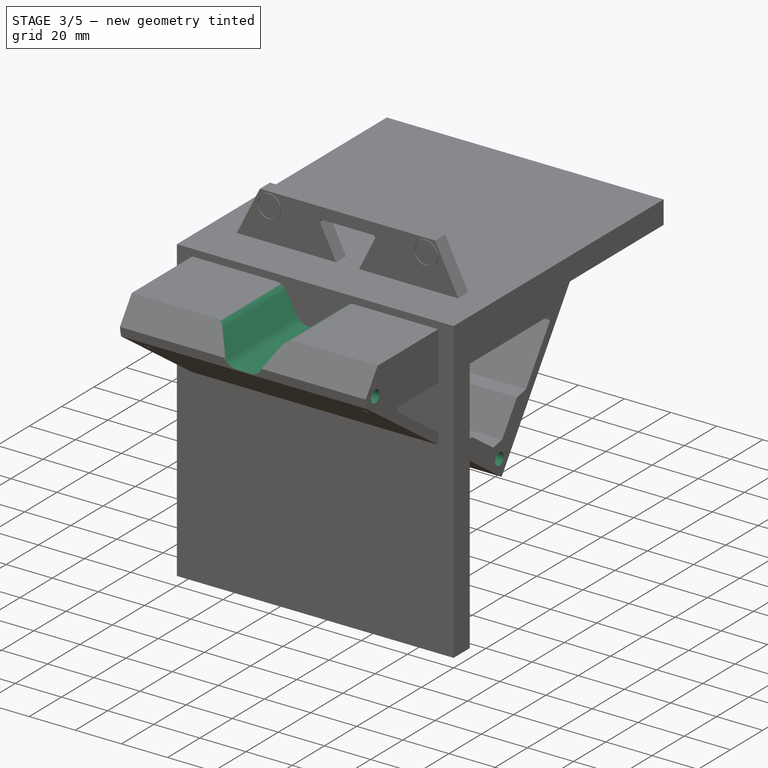
[diagram: stage 3 of 5 — iso view after this stage's code; geometry added in this stage tinted green]
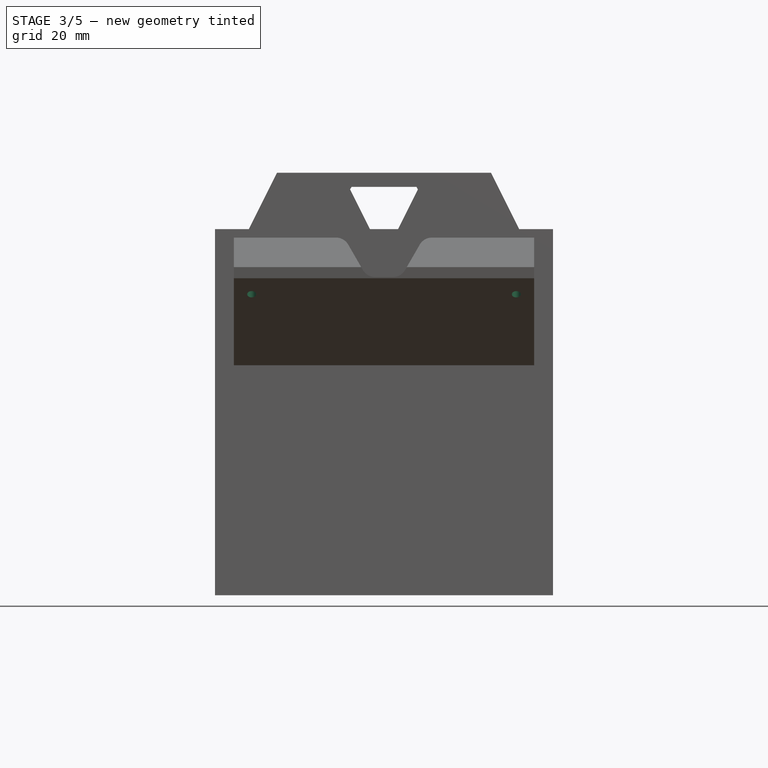
[diagram: stage 3 of 5 — front view after this stage's code; geometry added in this stage tinted green]
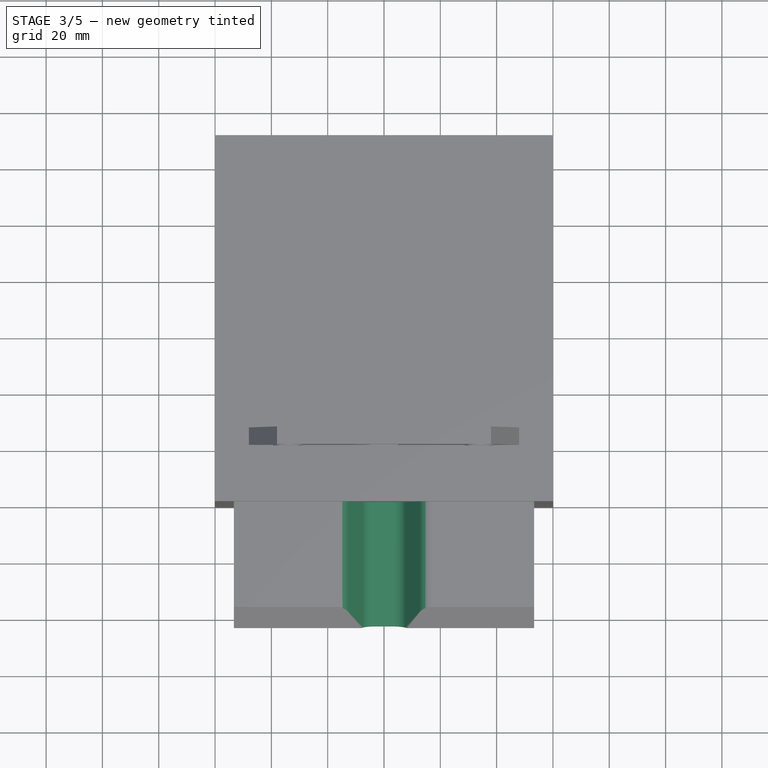
[diagram: stage 3 of 5 — top view after this stage's code; geometry added in this stage tinted green]
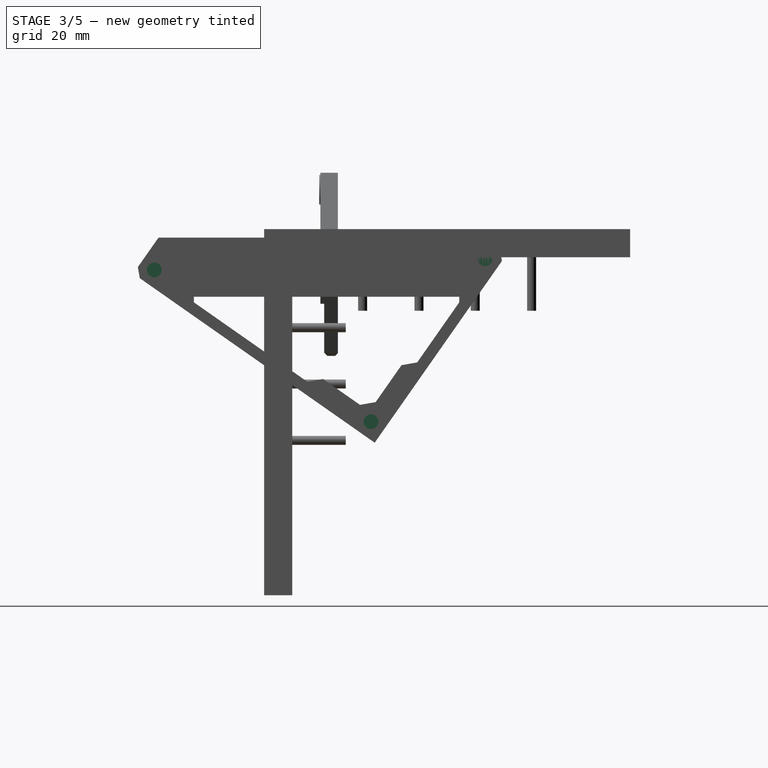
[diagram: stage 3 of 5 — right view after this stage's code; geometry added in this stage tinted green]
FEATURE [Sketcher::SketchObject] Sketch018
  FullyConstrained = true
  MapMode = 5
  Support = -> [XY_Plane002]
  sketch-geometry (11):
    g0: LineSegment StartX=-47 StartY=56 StartZ=0 EndX=47 EndY=56 EndZ=0
    g1: LineSegment StartX=47 StartY=56 StartZ=0 EndX=47 EndY=-56 EndZ=0
    g2: LineSegment StartX=47 StartY=-56 StartZ=0 EndX=-47 EndY=-56 EndZ=0
    g3: LineSegment StartX=-47 StartY=-56 StartZ=0 EndX=-47 EndY=56 EndZ=0
    g4: LineSegment StartX=-47 StartY=56 StartZ=0 EndX=0 EndY=0 EndZ=0
    g5: LineSegment StartX=47 StartY=56 StartZ=0 EndX=0 EndY=0 EndZ=0
    g6: LineSegment StartX=0 StartY=0 StartZ=0 EndX=-47 EndY=-56 EndZ=0
    g7: Circle CenterX=-47 CenterY=56 CenterZ=0 NormalX=0 NormalY=0 NormalZ=1 AngleXU=0 Radius=1.6
    g8: Circle CenterX=47 CenterY=56 CenterZ=0 NormalX=0 NormalY=0 NormalZ=1 AngleXU=0 Radius=1.6
    g9: Circle CenterX=47 CenterY=-56 CenterZ=0 NormalX=0 NormalY=0 NormalZ=1 AngleXU=0 Radius=1.6
    g10: Circle CenterX=-47 CenterY=-56 CenterZ=0 NormalX=0 NormalY=0 NormalZ=1 AngleXU=0 Radius=1.6
  constraints (26):
    c: Coincident(g0,g1)
    c: Coincident(g1,g2)
    c: Coincident(g2,g3)
    c: Coincident(g3,g0)
    c: Horizontal(g0)
    c: Horizontal(g2)
    c: Vertical(g1)
    c: Vertical(g3)
    c: Coincident(g0,g4)
    c: Coincident(g4,g-1)
    c: Coincident(g0,g5)
    c: Coincident(g5,g-1)
    c: Coincident(g5,g6)
    c: Coincident(g6,g2)
    c: Equal(g6,g4)
    c: Equal(g4,g5)
    c: DistanceX(g0,g0) = 94
    c: DistanceY(g3,g3) = 112
    c: Coincident(g7,g0)
    c: Coincident(g8,g0)
    c: Coincident(g9,g1)
    c: Coincident(g10,g2)
    c: Diameter(g10) = 3.2
    c: Equal(g10,g7)
    c: Equal(g10,g8)
    c: Equal(g10,g9)
FEATURE [PartDesign::Pocket] Pocket014  label="Magnet"
  BaseFeature = -> Pad003
  Length = 30
  Length2 = 100
  Midplane = true
  Placement = pos=(0,0,0) rot=(0.57735,0.57735,0.57735;2.0944rad)
  Profile = -> Sketch018
  Type = 0
FEATURE [Sketcher::SketchObject] Sketch019
  FullyConstrained = true
  MapMode = 5
  Placement = pos=(0,0,0) rot=(1,0,0;1.5708rad)
  Support = -> [XZ_Plane002]
  sketch-geometry (17):
    g0: LineSegment StartX=-55 StartY=17 StartZ=0 EndX=-17.0263 EndY=17 EndZ=0
    g1: LineSegment StartX=-12.6962 StartY=14.5 StartZ=0 EndX=-7.5 EndY=5.5 EndZ=0
    g2: LineSegment StartX=-3.16987 StartY=3 StartZ=0 EndX=3.16987 EndY=3 EndZ=0
    g3: LineSegment StartX=7.5 StartY=5.5 StartZ=0 EndX=12.6962 EndY=14.5 EndZ=0
    g4: LineSegment StartX=17.0263 StartY=17 StartZ=0 EndX=55 EndY=17 EndZ=0
    g5: LineSegment StartX=55 StartY=17 StartZ=0 EndX=55 EndY=27 EndZ=0
    g6: LineSegment StartX=55 StartY=27 StartZ=0 EndX=-55 EndY=27 EndZ=0
    g7: LineSegment StartX=-55 StartY=27 StartZ=0 EndX=-55 EndY=17 EndZ=0
    g8: ArcOfCircle CenterX=-17.0263 CenterY=12 CenterZ=0 NormalX=0 NormalY=0 NormalZ=1 AngleXU=0 Radius=5 StartAngle=0.523599 EndAngle=1.5708
    g9: ArcOfCircle CenterX=-3.16987 CenterY=8 CenterZ=0 NormalX=0 NormalY=0 NormalZ=1 AngleXU=0 Radius=5 StartAngle=3.66519 EndAngle=4.71239
    g10: ArcOfCircle CenterX=3.16987 CenterY=8 CenterZ=0 NormalX=0 NormalY=0 NormalZ=1 AngleXU=0 Radius=5 StartAngle=4.71239 EndAngle=5.75959
    g11: ArcOfCircle CenterX=17.0263 CenterY=12 CenterZ=0 NormalX=0 NormalY=0 NormalZ=1 AngleXU=0 Radius=5 StartAngle=1.5708 EndAngle=2.61799
    g12: LineSegment StartX=-55 StartY=17 StartZ=0 EndX=0 EndY=0 EndZ=0
    g13: LineSegment StartX=55 StartY=17 StartZ=0 EndX=0 EndY=0 EndZ=0
    g14: LineSegment StartX=-17.0263 StartY=17 StartZ=0 EndX=17.0263 EndY=17 EndZ=0
    g15: LineSegment StartX=-3.16987 StartY=3 StartZ=0 EndX=0 EndY=0 EndZ=0
    g16: LineSegment StartX=0 StartY=0 StartZ=0 EndX=3.16987 EndY=3 EndZ=0
  constraints (42):
    c: Horizontal(g0)
    c: Horizontal(g2)
    c: Horizontal(g4)
    c: Coincident(g4,g5)
    c: Vertical(g5)
    c: Coincident(g5,g6)
    c: Horizontal(g6)
    c: Coincident(g6,g7)
    c: Coincident(g7,g0)
    c: Vertical(g7)
    c: Tangent(g0,g8) = 1.5708
    c: Tangent(g1,g8) = 1.5708
    c: Tangent(g1,g9) = -1.5708
    c: Tangent(g2,g9) = -1.5708
    c: Tangent(g2,g10) = -1.5708
    c: Tangent(g3,g10) = -1.5708
    c: Tangent(g3,g11) = 1.5708
    c: Tangent(g4,g11) = 1.5708
    c: DistanceY(g-1,g0) = 17
    c: Coincident(g12,g0)
    c: Coincident(g12,g-1)
    c: Coincident(g13,g4)
    c: Coincident(g13,g-1)
    c: Coincident(g14,g0)
    c: Coincident(g14,g4)
    c: Horizontal(g14)
    c: Equal(g13,g12)
    c: DistanceX(g6,g6) = 110
    c: Equal(g0,g4)
    c: Coincident(g2,g15)
    c: Coincident(g15,g-1)
    c: Coincident(g15,g16)
    c: Coincident(g16,g2)
    c: Equal(g16,g15)
    c: DistanceY(g-1,g2) = 3
    c: Radius(g9) = 5
    c: Equal(g9,g10)
    c: Angle(g2,g1) = 2.0944
    c: Radius(g8) = 5
    c: Equal(g8,g11)
    c: DistanceX(g1,g3) = 15
    c: DistanceY(g7,g7) = 10
FEATURE [Sketcher::SketchObject] Sketch021
  AttachmentOffset = pos=(0,0,-49) rot=(0,0,1;0rad)
  FullyConstrained = true
  MapMode = 5
  Placement = pos=(-49,1.09e-14,-1.09e-14) rot=(0.57735,0.57735,0.57735;2.0944rad)
  Support = -> [YZ_Plane002]
  sketch-geometry (5):
    g0: Circle CenterX=-59 CenterY=5.5 CenterZ=0 NormalX=0 NormalY=0 NormalZ=1 AngleXU=0 Radius=2.625
    g1: Circle CenterX=58.5 CenterY=9.5 CenterZ=0 NormalX=0 NormalY=0 NormalZ=1 AngleXU=0 Radius=2.625
    g2: Circle CenterX=17.9643 CenterY=-48.391 CenterZ=0 NormalX=0 NormalY=0 NormalZ=1 AngleXU=0 Radius=2.625
    g3: LineSegment StartX=-59 StartY=5.5 StartZ=0 EndX=17.9643 EndY=-48.391 EndZ=0
    g4: LineSegment StartX=17.9643 StartY=-48.391 StartZ=0 EndX=58.5 EndY=9.5 EndZ=0
  constraints (13):
    c: Diameter(g0) = 5.25
    c: Equal(g0,g1)
    c: Equal(g0,g2)
    c: Coincident(g3,g0)
    c: Coincident(g3,g2)
    c: Coincident(g4,g2)
    c: Coincident(g4,g1)
    c: Perpendicular(g3,g4)
    c: Angle(g3,g-1) = 0.610865
    c: DistanceX(g0,g-1) = 59
    c: DistanceY(g-1,g0) = 5.5
    c: DistanceX(g-1,g1) = 58.5
    c: DistanceY(g-1,g1) = 9.5
FEATURE [PartDesign::Pocket] Pocket015  label="AlignmentPocket"
  BaseFeature = -> Pocket014
  Length = 5
  Length2 = 100
  Placement = pos=(0,0,0) rot=(0.57735,0.57735,0.57735;2.0944rad)
  Profile = -> Sketch021
  Type = 1
FEATURE [PartDesign::Pocket] Pocket016  label="USB"
  BaseFeature = -> Pocket015
  Length = 5
  Length2 = 100
  Midplane = true
  Placement = pos=(0,0,0) rot=(0.57735,0.57735,0.57735;2.0944rad)
  Profile = -> Sketch019
  Type = 1
FEATURE [Sketcher::SketchObject] Sketch022
  AttachmentOffset = pos=(0,0,35) rot=(0,0,1;0rad)
  FullyConstrained = true
  MapMode = 5
  Placement = pos=(35,-7.8e-15,7.8e-15) rot=(0.57735,0.57735,0.57735;2.0944rad)
  Support = -> [YZ_Plane002]
  sketch-geometry (22):
    g0: LineSegment StartX=-53.5 StartY=0 StartZ=0 EndX=53.5 EndY=0 EndZ=0
    g1: LineSegment StartX=-53.5 StartY=0 StartZ=0 EndX=0 EndY=0 EndZ=0
    g2: LineSegment StartX=0 StartY=0 StartZ=0 EndX=53.5 EndY=0 EndZ=0
    g3: LineSegment StartX=-53.5 StartY=0 StartZ=0 EndX=-55.7943 EndY=-3.27661 EndZ=0
    g4: LineSegment StartX=53.5 StartY=0 StartZ=0 EndX=56.7766 EndY=-2.29431 EndZ=0
    g5: LineSegment StartX=-55.7943 StartY=-3.27661 StartZ=0 EndX=19.2804 EndY=-55.8445 EndZ=0
    g6: LineSegment StartX=19.2804 StartY=-55.8445 StartZ=0 EndX=56.7766 EndY=-2.29431 EndZ=0
    g7: LineSegment StartX=-1.15721 StartY=-39.7028 StartZ=0 EndX=14.8163 EndY=-50.8875 EndZ=0
    g8: LineSegment StartX=14.8163 StartY=-50.8875 StartZ=0 EndX=3.63152 EndY=-66.861 EndZ=0
    g9: LineSegment StartX=3.63152 StartY=-66.861 StartZ=0 EndX=7.72728 EndY=-69.7288 EndZ=0
    g10: LineSegment StartX=7.72728 StartY=-69.7288 StartZ=0 EndX=18.912 EndY=-53.7554 EndZ=0
    g11: LineSegment StartX=18.912 StartY=-53.7554 StartZ=0 EndX=34.8855 EndY=-64.9401 EndZ=0
    g12: LineSegment StartX=34.8855 StartY=-64.9401 StartZ=0 EndX=37.7534 EndY=-60.8444 EndZ=0
    g13: LineSegment StartX=37.7534 StartY=-60.8444 StartZ=0 EndX=21.7799 EndY=-49.6596 EndZ=0
    g14: LineSegment StartX=21.7799 StartY=-49.6596 StartZ=0 EndX=32.9646 EndY=-33.6862 EndZ=0
    g15: LineSegment StartX=32.9646 StartY=-33.6862 StartZ=0 EndX=28.8689 EndY=-30.8183 EndZ=0
    g16: LineSegment StartX=28.8689 StartY=-30.8183 StartZ=0 EndX=17.6841 EndY=-46.7917 EndZ=0
    g17: LineSegment StartX=17.6841 StartY=-46.7917 StartZ=0 EndX=1.71067 EndY=-35.607 EndZ=0
    g18: LineSegment StartX=1.71067 StartY=-35.607 StartZ=0 EndX=-1.15721 EndY=-39.7028 EndZ=0
    g19: LineSegment StartX=18.912 StartY=-53.7554 StartZ=0 EndX=20.1407 EndY=-54.6157 EndZ=0
    g20: LineSegment StartX=18.912 StartY=-53.7554 StartZ=0 EndX=18.0517 EndY=-54.9841 EndZ=0
    g21: LineSegment StartX=7.72728 StartY=-69.7288 StartZ=0 EndX=34.8855 EndY=-64.9401 EndZ=0
  constraints (63):
    c: Horizontal(g0)
    c: Coincident(g1,g0)
    c: Coincident(g1,g-1)
    c: Coincident(g2,g-1)
    c: Coincident(g2,g0)
    c: Equal(g2,g1)
    c: PointOnObject(g-1,g0)
    c: DistanceX(g0,g0) = 107
    c: Coincident(g0,g3)
    c: Coincident(g0,g4)
    c: Coincident(g5,g6)
    c: Perpendicular(g6,g4)
    c: Perpendicular(g6,g5)
    c: Perpendicular(g3,g5)
    c: Coincident(g3,g5)
    c: Coincident(g4,g6)
    c: Angle(g5,g-1) = 0.610865
    c: Equal(g4,g3)
    c: Distance(g3) = 4
    c: Coincident(g7,g8)
    c: Coincident(g8,g9)
    c: Coincident(g9,g10)
    c: Coincident(g10,g11)
    c: Coincident(g11,g12)
    c: Coincident(g12,g13)
    c: Coincident(g13,g14)
    c: Coincident(g14,g15)
    c: Coincident(g15,g16)
    c: Coincident(g16,g17)
    c: Coincident(g17,g18)
    c: Coincident(g18,g7)
    c: Parallel(g15,g17)
    c: Parallel(g17,g7)
    c: Parallel(g7,g9)
    c: Parallel(g9,g11)
    c: Parallel(g11,g13)
    c: Parallel(g12,g10)
    c: Parallel(g10,g14)
    c: Parallel(g14,g16)
    c: Parallel(g16,g8)
    c: Parallel(g8,g18)
    c: Perpendicular(g7,g18)
    c: Equal(g10,g8)
    c: Equal(g8,g11)
    c: Equal(g11,g13)
    c: Equal(g12,g9)
    c: Equal(g14,g16)
    c: Equal(g16,g17)
    c: Equal(g17,g7)
    c: Distance(g12) = 5
    c: Parallel(g7,g5)
    c: Coincident(g19,g10)
    c: PointOnObject(g19,g6)
    c: Coincident(g20,g10)
    c: PointOnObject(g20,g5)
    c: Equal(g20,g19)
    c: Perpendicular(g5,g20)
    c: Perpendicular(g6,g19)
    c: Distance(g10,g19) = 1.5
    c: Distance(g19,g7) = 26
    c: Equal(g8,g7)
    c: Coincident(g21,g9)
    c: Coincident(g21,g12)
FEATURE [PartDesign::Pocket] Pocket017  label="LegSocket"
  BaseFeature = -> Pocket016
  Length = 25
  Length2 = 100
  Placement = pos=(0,0,0) rot=(0.57735,0.57735,0.57735;2.0944rad)
  Profile = -> Sketch022
  Type = 0
FEATURE [PartDesign::Mirrored] Mirrored
  BaseFeature = -> Pocket017
  MirrorPlane = -> YZ_Plane002
  Originals = -> [Pocket017]
  Placement = pos=(0,0,0) rot=(0.57735,0.57735,0.57735;2.0944rad)
FEATURE [PartDesign::Body] Body005  label="AccessoryTemplate"
  Group = -> [Sketch027,Pad008,Sketch028,Pad009,Sketch026,Pad010]
  Origin = -> Origin005
  Placement = pos=(0,19.2804,-55.8445) rot=(1,0,0;2.53073rad)
  Tip = -> Pad010
  expr: .Placement.Base.z = -55.844471
  expr: .Placement.Base.y = 19.28038
FEATURE [PartDesign::Mirrored] Mirrored001
  BaseFeature = -> Mirrored
  MirrorPlane = -> YZ_Plane002
  Originals = -> [Pocket015]
  Placement = pos=(0,0,0) rot=(0.57735,0.57735,0.57735;2.0944rad)
FEATURE [PartDesign::Chamfer] Chamfer010  label="LegChamfer1"
  Angle = 45
  Base = -> Mirrored001 [Edge46,Edge55,Edge58,Edge42]
  BaseFeature = -> Mirrored001
  ChamferType = 1
  FlipDirection = false
  Placement = pos=(0,0,0) rot=(0.57735,0.57735,0.57735;2.0944rad)
  Size = 3.2
  Size2 = 6.4
  SupportTransform = false
FEATURE [PartDesign::Chamfer] Chamfer011  label="LegChamfer2"
  Angle = 45
  Base = -> Chamfer010 [Edge6,Edge24,Edge14,Edge23]
  BaseFeature = -> Chamfer010
  ChamferType = 1
  FlipDirection = false
  Placement = pos=(0,0,0) rot=(0.57735,0.57735,0.57735;2.0944rad)
  Size = 3.2
  Size2 = 6.4
  SupportTransform = false
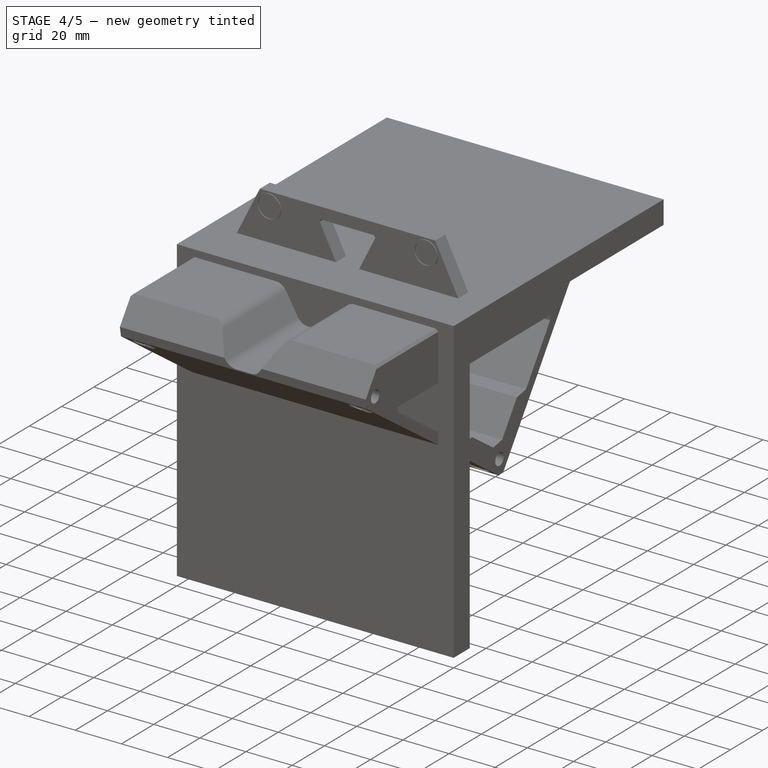
[diagram: stage 4 of 5 — iso view after this stage's code; geometry added in this stage tinted green]
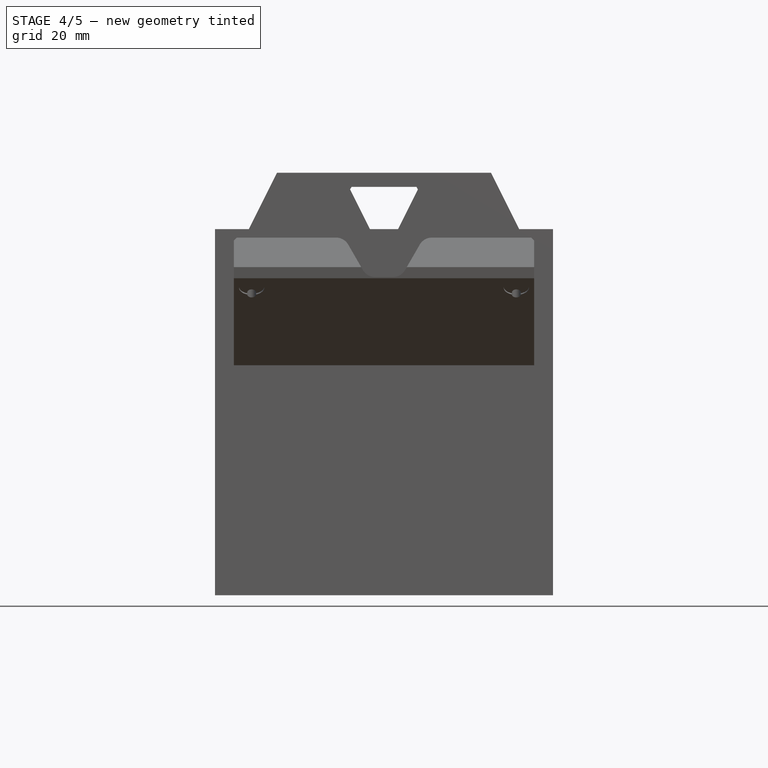
[diagram: stage 4 of 5 — front view after this stage's code; geometry added in this stage tinted green]
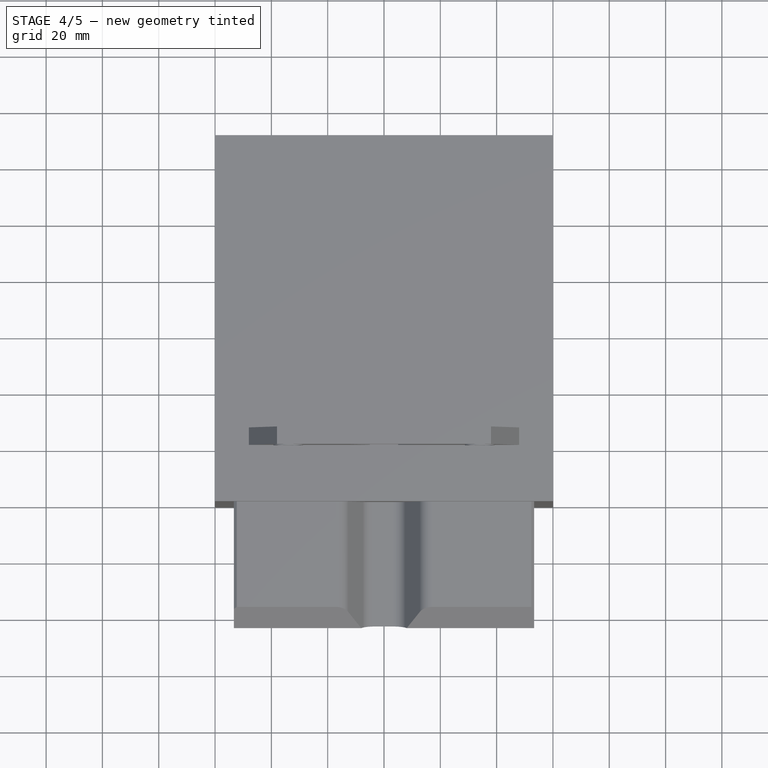
[diagram: stage 4 of 5 — top view after this stage's code; geometry added in this stage tinted green]
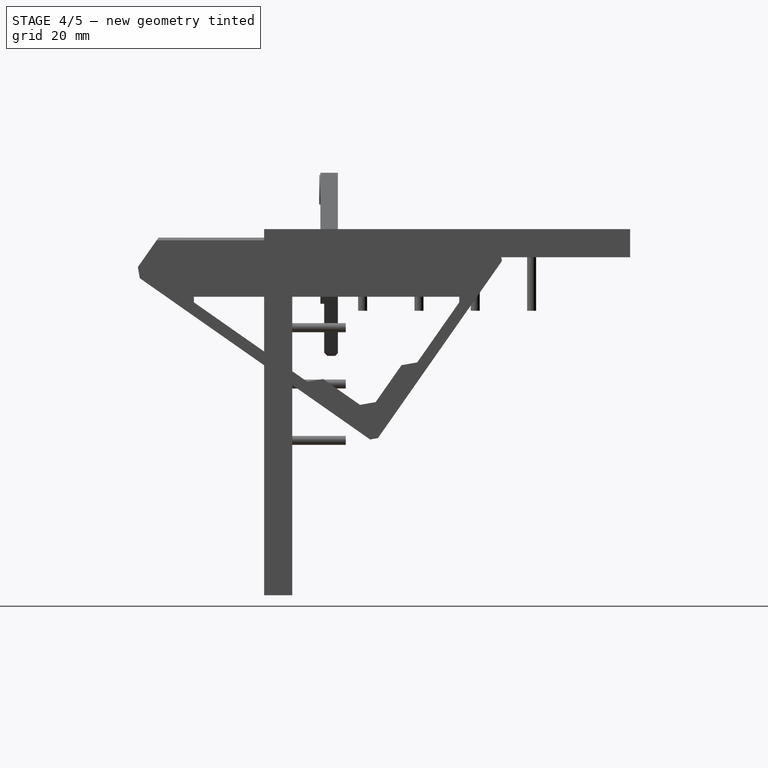
[diagram: stage 4 of 5 — right view after this stage's code; geometry added in this stage tinted green]
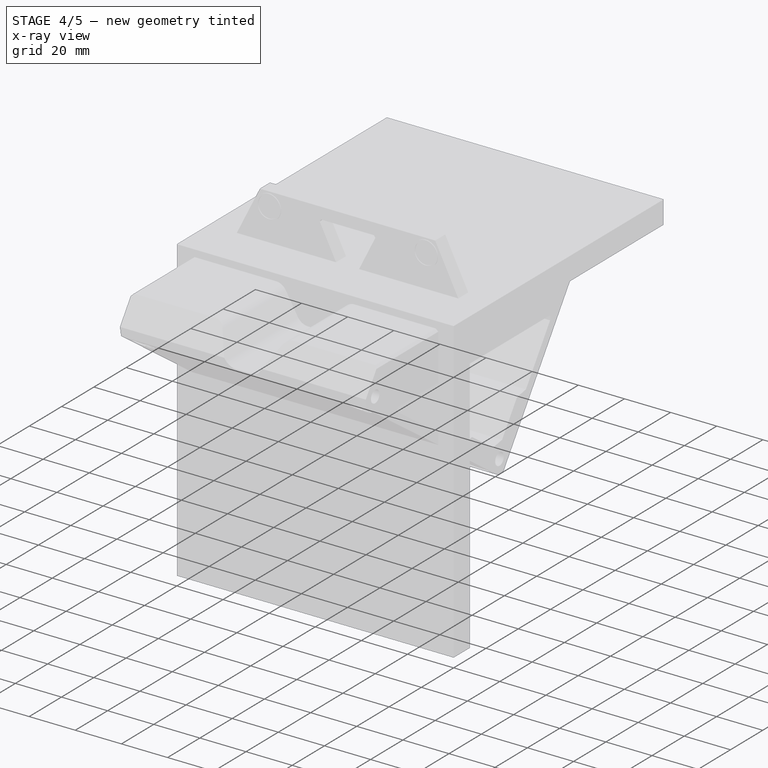
[diagram: stage 4 of 5 — x-ray composite at the iso view; earlier geometry ghosted, this stage's added geometry solid]
FEATURE [Sketcher::SketchObject] Sketch023
  FullyConstrained = true
  MapMode = 5
  Placement = pos=(0,0,0) rot=(0.57735,0.57735,0.57735;2.0944rad)
  Support = -> [YZ_Plane004]
  sketch-geometry (6):
    g0: LineSegment StartX=-10 StartY=10 StartZ=0 EndX=-10 EndY=-110 EndZ=0
    g1: LineSegment StartX=-10 StartY=-110 StartZ=0 EndX=-20 EndY=-110 EndZ=0
    g2: LineSegment StartX=-20 StartY=-110 StartZ=0 EndX=-20 EndY=20 EndZ=0
    g3: LineSegment StartX=-20 StartY=20 StartZ=0 EndX=110 EndY=20 EndZ=0
    g4: LineSegment StartX=110 StartY=20 StartZ=0 EndX=110 EndY=10 EndZ=0
    g5: LineSegment StartX=110 StartY=10 StartZ=0 EndX=-10 EndY=10 EndZ=0
  constraints (18):
    c: Vertical(g0)
    c: Coincident(g0,g1)
    c: Horizontal(g1)
    c: Coincident(g1,g2)
    c: Vertical(g2)
    c: Coincident(g2,g3)
    c: Horizontal(g3)
    c: Coincident(g3,g4)
    c: Vertical(g4)
    c: Coincident(g4,g5)
    c: Coincident(g5,g0)
    c: Horizontal(g5)
    c: DistanceX(g0,g-1) = 10
    c: DistanceY(g-1,g0) = 10
    c: Equal(g4,g1)
    c: Equal(g0,g5)
    c: DistanceX(g3,g3) = 130
    c: DistanceY(g4,g4) = 10
FEATURE [PartDesign::Pad] Pad005
  Direction = (1,1,1)
  Length = 120
  Length2 = 100
  Midplane = true
  Placement = pos=(0,0,0) rot=(0.57735,0.57735,0.57735;2.0944rad)
  Profile = -> Sketch023
  Type = 0
FEATURE [Sketcher::SketchObject] Sketch024
  AttachmentOffset = pos=(0,0,-10) rot=(0,0,1;0rad)
  FullyConstrained = true
  MapMode = 5
  Placement = pos=(0,-10,-2.2e-15) rot=(0,0.707107,0.707107;3.14159rad)
  Support = -> [XZ_Plane004]
  sketch-geometry (10):
    g0: LineSegment StartX=-47 StartY=-7 StartZ=0 EndX=47 EndY=-7 EndZ=0
    g1: LineSegment StartX=47 StartY=-7 StartZ=0 EndX=47 EndY=-73 EndZ=0
    g2: LineSegment StartX=47 StartY=-73 StartZ=0 EndX=-47 EndY=-73 EndZ=0
    g3: LineSegment StartX=-47 StartY=-73 StartZ=0 EndX=-47 EndY=-7 EndZ=0
    g4: LineSegment StartX=-47 StartY=-7 StartZ=0 EndX=0 EndY=0 EndZ=0
    g5: LineSegment StartX=0 StartY=0 StartZ=0 EndX=47 EndY=-7 EndZ=0
    g6: Circle CenterX=-47 CenterY=-7 CenterZ=0 NormalX=0 NormalY=0 NormalZ=1 AngleXU=0 Radius=4.5
    g7: Circle CenterX=-47 CenterY=-73 CenterZ=0 NormalX=0 NormalY=0 NormalZ=1 AngleXU=0 Radius=4.5
    g8: Circle CenterX=47 CenterY=-7 CenterZ=0 NormalX=0 NormalY=0 NormalZ=1 AngleXU=0 Radius=4.5
    g9: Circle CenterX=47 CenterY=-73 CenterZ=0 NormalX=0 NormalY=0 NormalZ=1 AngleXU=0 Radius=4.5
  constraints (24):
    c: Coincident(g0,g1)
    c: Coincident(g1,g2)
    c: Coincident(g2,g3)
    c: Coincident(g3,g0)
    c: Horizontal(g0)
    c: Horizontal(g2)
    c: Vertical(g1)
    c: Vertical(g3)
    c: Coincident(g4,g0)
    c: Coincident(g4,g-1)
    c: Coincident(g5,g-1)
    c: Coincident(g5,g0)
    c: Equal(g4,g5)
    c: DistanceY(g0,g-1) = 7
    c: DistanceY(g3,g3) = 66
    c: DistanceX(g2,g2) = 94
    c: Coincident(g6,g0)
    c: Coincident(g7,g2)
    c: Coincident(g8,g0)
    c: Coincident(g9,g1)
    c: Diameter(g9) = 9
    c: Equal(g9,g8)
    c: Equal(g9,g6)
    c: Equal(g9,g7)
FEATURE [PartDesign::Pad] Pad006
  BaseFeature = -> Pad005
  Direction = (1,1,1)
  Length = 10.5
  Length2 = 100
  Placement = pos=(0,0,0) rot=(0.57735,0.57735,0.57735;2.0944rad)
  Profile = -> Sketch024
  Type = 0
FEATURE [Sketcher::SketchObject] Sketch025
  AttachmentOffset = pos=(0,0,-10) rot=(0,0,1;0rad)
  FullyConstrained = true
  MapMode = 5
  Placement = pos=(0,0,10) rot=(0,1,0;3.14159rad)
  Support = -> [XY_Plane004]
  sketch-geometry (10):
    g0: LineSegment StartX=-47 StartY=96 StartZ=0 EndX=47 EndY=96 EndZ=0
    g1: LineSegment StartX=47 StartY=96 StartZ=0 EndX=47 EndY=7 EndZ=0
    g2: LineSegment StartX=47 StartY=7 StartZ=0 EndX=-47 EndY=7 EndZ=0
    g3: LineSegment StartX=-47 StartY=7 StartZ=0 EndX=-47 EndY=96 EndZ=0
    g4: LineSegment StartX=-47 StartY=7 StartZ=0 EndX=0 EndY=-9e-16 EndZ=0
    g5: LineSegment StartX=0 StartY=0 StartZ=0 EndX=47 EndY=7 EndZ=0
    g6: Circle CenterX=-47 CenterY=7 CenterZ=0 NormalX=0 NormalY=0 NormalZ=1 AngleXU=0 Radius=4.5
    g7: Circle CenterX=-47 CenterY=96 CenterZ=0 NormalX=0 NormalY=0 NormalZ=1 AngleXU=0 Radius=4.5
    g8: Circle CenterX=47 CenterY=96 CenterZ=0 NormalX=0 NormalY=0 NormalZ=1 AngleXU=0 Radius=4.5
    g9: Circle CenterX=47 CenterY=7 CenterZ=0 NormalX=0 NormalY=0 NormalZ=1 AngleXU=0 Radius=4.5
  constraints (24):
    c: Coincident(g0,g1)
    c: Coincident(g1,g2)
    c: Coincident(g2,g3)
    c: Coincident(g3,g0)
    c: Horizontal(g0)
    c: Horizontal(g2)
    c: Vertical(g1)
    c: Vertical(g3)
    c: Coincident(g2,g4)
    c: Coincident(g4,g-1)
    c: Coincident(g4,g5)
    c: Coincident(g5,g1)
    c: DistanceX(g2,g2) = 94
    c: DistanceY(g-1,g2) = 7
    c: DistanceY(g3,g3) = 89
    c: Coincident(g6,g2)
    c: Coincident(g7,g0)
    c: Coincident(g8,g0)
    c: Coincident(g9,g1)
    c: Diameter(g9) = 9
    c: Equal(g9,g6)
    c: Equal(g9,g7)
    c: Equal(g9,g8)
    c: Equal(g4,g5)
FEATURE [PartDesign::Pad] Pad007
  BaseFeature = -> Pad006
  Direction = (1,1,1)
  Length = 10.5
  Length2 = 100
  Placement = pos=(0,0,0) rot=(0.57735,0.57735,0.57735;2.0944rad)
  Profile = -> Sketch025
  Type = 0
FEATURE [PartDesign::Chamfer] Chamfer012  label="BackChamfer1"
  Angle = 45
  Base = -> Chamfer011 [Edge4]
  BaseFeature = -> Chamfer011
  ChamferType = 0
  FlipDirection = false
  Placement = pos=(0,0,0) rot=(0.57735,0.57735,0.57735;2.0944rad)
  Size = 2
  Size2 = 1
  SupportTransform = false
FEATURE [PartDesign::Chamfer] Chamfer013  label="BackChamfer2"
  Angle = 45
  Base = -> Chamfer012 [Edge10,Edge7]
  BaseFeature = -> Chamfer012
  ChamferType = 0
  FlipDirection = false
  Placement = pos=(0,0,0) rot=(0.57735,0.57735,0.57735;2.0944rad)
  Size = 2
  Size2 = 1
  SupportTransform = false
FEATURE [PartDesign::Boolean] Boolean
  BaseFeature = -> Chamfer013
  Group = -> [Body004]
  Type = 1
FEATURE [PartDesign::Chamfer] Chamfer014
  Angle = 45
  Base = -> Boolean [Edge101,Edge40]
  BaseFeature = -> Boolean
  ChamferType = 0
  FlipDirection = false
  Size = 1
  Size2 = 1
  SupportTransform = false
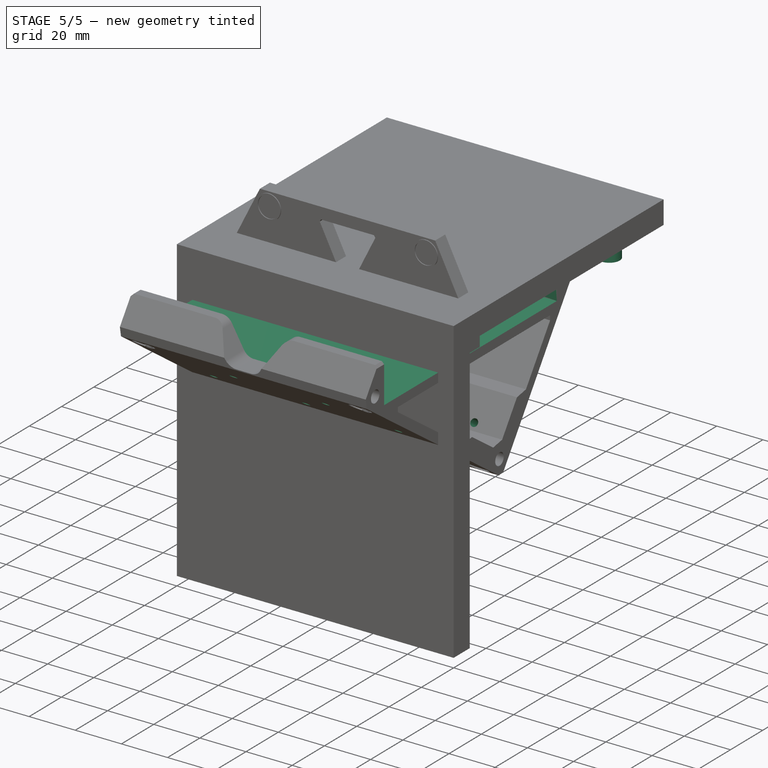
[diagram: stage 5 of 5 — iso view after this stage's code; geometry added in this stage tinted green]
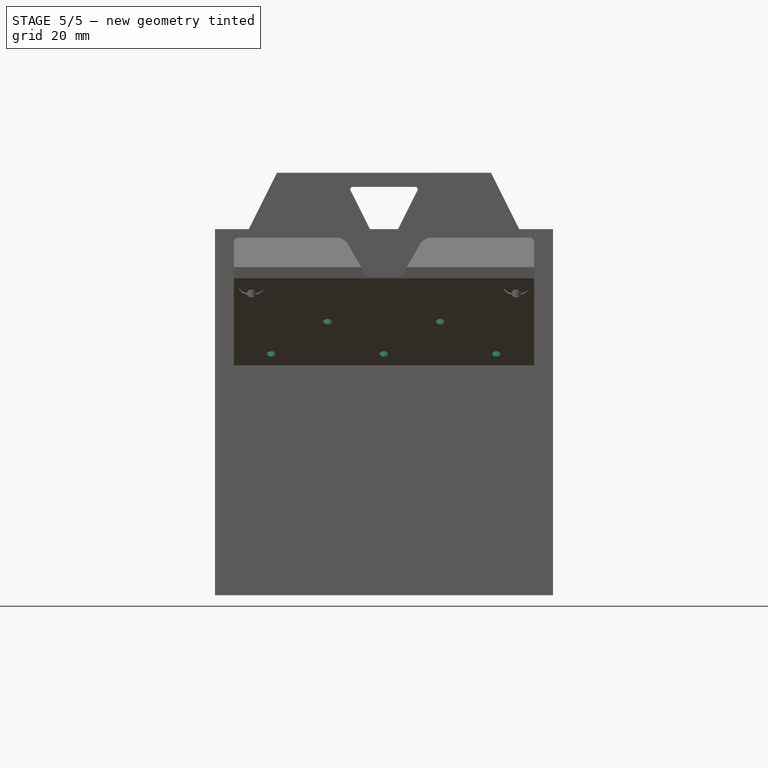
[diagram: stage 5 of 5 — front view after this stage's code; geometry added in this stage tinted green]
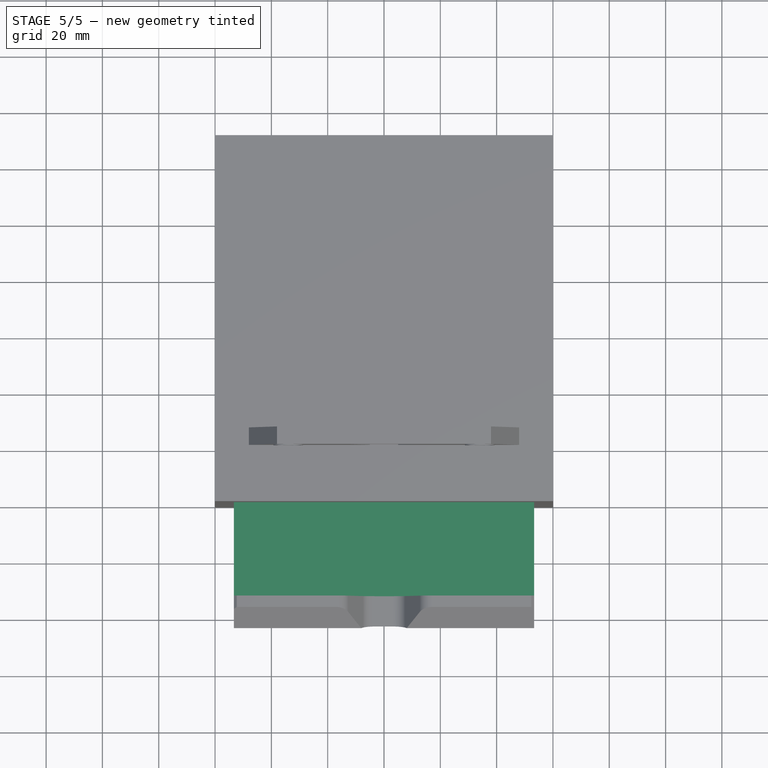
[diagram: stage 5 of 5 — top view after this stage's code; geometry added in this stage tinted green]
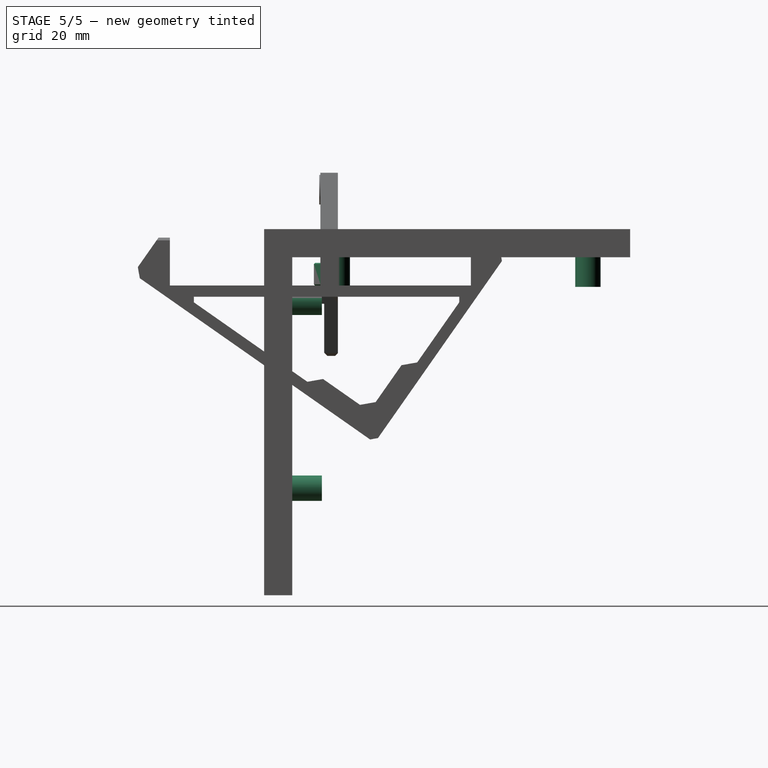
[diagram: stage 5 of 5 — right view after this stage's code; geometry added in this stage tinted green]
FEATURE [PartDesign::Body] Body004  label="Foot"
  Group = -> [Sketch023,Pad005,Sketch024,Pad006,Sketch025,Pad007]
  Origin = -> Origin004
  Placement = pos=(0,19.2804,-55.8445) rot=(1,0,0;2.53073rad)
  Tip = -> Pad007
  expr: .Placement.Base.z = -55.844471
  expr: .Placement.Base.y = 19.28038
FEATURE [Sketcher::SketchObject] Sketch026
  AttachmentOffset = pos=(0,0,-10) rot=(0,0,1;0rad)
  FullyConstrained = true
  MapMode = 5
  Placement = pos=(0,0,10) rot=(0,1,0;3.14159rad)
  Support = -> [XY_Plane005]
  sketch-geometry (10):
    g0: LineSegment StartX=-47 StartY=95 StartZ=0 EndX=47 EndY=95 EndZ=0
    g1: LineSegment StartX=47 StartY=95 StartZ=0 EndX=47 EndY=6 EndZ=0
    g2: LineSegment StartX=47 StartY=6 StartZ=0 EndX=-47 EndY=6 EndZ=0
    g3: LineSegment StartX=-47 StartY=6 StartZ=0 EndX=-47 EndY=95 EndZ=0
    g4: LineSegment StartX=-47 StartY=6 StartZ=0 EndX=0 EndY=9e-16 EndZ=0
    g5: LineSegment StartX=0 StartY=0 StartZ=0 EndX=47 EndY=6 EndZ=0
    g6: Circle CenterX=-47 CenterY=6 CenterZ=0 NormalX=0 NormalY=0 NormalZ=1 AngleXU=0 Radius=4.5
    g7: Circle CenterX=-47 CenterY=95 CenterZ=0 NormalX=0 NormalY=0 NormalZ=1 AngleXU=0 Radius=4.5
    g8: Circle CenterX=47 CenterY=95 CenterZ=0 NormalX=0 NormalY=0 NormalZ=1 AngleXU=0 Radius=4.5
    g9: Circle CenterX=47 CenterY=6 CenterZ=0 NormalX=0 NormalY=0 NormalZ=1 AngleXU=0 Radius=4.5
  constraints (24):
    c: Coincident(g0,g1)
    c: Coincident(g1,g2)
    c: Coincident(g2,g3)
    c: Coincident(g3,g0)
    c: Horizontal(g0)
    c: Horizontal(g2)
    c: Vertical(g1)
    c: Vertical(g3)
    c: Coincident(g2,g4)
    c: Coincident(g4,g-1)
    c: Coincident(g4,g5)
    c: Coincident(g5,g1)
    c: DistanceX(g2,g2) = 94
    c: DistanceY(g-1,g2) = 6
    c: DistanceY(g3,g3) = 89
    c: Coincident(g6,g2)
    c: Coincident(g7,g0)
    c: Coincident(g8,g0)
    c: Coincident(g9,g1)
    c: Diameter(g9) = 9
    c: Equal(g9,g6)
    c: Equal(g9,g7)
    c: Equal(g9,g8)
    c: Equal(g4,g5)
FEATURE [Sketcher::SketchObject] Sketch027
  FullyConstrained = true
  MapMode = 5
  Placement = pos=(0,0,0) rot=(0.57735,0.57735,0.57735;2.0944rad)
  Support = -> [YZ_Plane005]
  sketch-geometry (6):
    g0: LineSegment StartX=-10 StartY=10 StartZ=0 EndX=-10 EndY=-110 EndZ=0
    g1: LineSegment StartX=-10 StartY=-110 StartZ=0 EndX=-20 EndY=-110 EndZ=0
    g2: LineSegment StartX=-20 StartY=-110 StartZ=0 EndX=-20 EndY=20 EndZ=0
    g3: LineSegment StartX=-20 StartY=20 StartZ=0 EndX=110 EndY=20 EndZ=0
    g4: LineSegment StartX=110 StartY=20 StartZ=0 EndX=110 EndY=10 EndZ=0
    g5: LineSegment StartX=110 StartY=10 StartZ=0 EndX=-10 EndY=10 EndZ=0
  constraints (18):
    c: Vertical(g0)
    c: Coincident(g0,g1)
    c: Horizontal(g1)
    c: Coincident(g1,g2)
    c: Vertical(g2)
    c: Coincident(g2,g3)
    c: Horizontal(g3)
    c: Coincident(g3,g4)
    c: Vertical(g4)
    c: Coincident(g4,g5)
    c: Coincident(g5,g0)
    c: Horizontal(g5)
    c: DistanceX(g0,g-1) = 10
    c: DistanceY(g-1,g0) = 10
    c: Equal(g4,g1)
    c: Equal(g0,g5)
    c: DistanceX(g3,g3) = 130
    c: DistanceY(g4,g4) = 10
FEATURE [PartDesign::Pad] Pad008
  Direction = (1,1,1)
  Length = 120
  Length2 = 100
  Midplane = true
  Placement = pos=(0,0,0) rot=(0.57735,0.57735,0.57735;2.0944rad)
  Profile = -> Sketch027
  Type = 0
FEATURE [Sketcher::SketchObject] Sketch028
  AttachmentOffset = pos=(0,0,-10) rot=(0,0,1;0rad)
  FullyConstrained = true
  MapMode = 5
  Placement = pos=(0,-10,-2.2e-15) rot=(0,0.707107,0.707107;3.14159rad)
  Support = -> [XZ_Plane005]
  sketch-geometry (10):
    g0: LineSegment StartX=-47 StartY=-6 StartZ=0 EndX=47 EndY=-6 EndZ=0
    g1: LineSegment StartX=47 StartY=-6 StartZ=0 EndX=47 EndY=-72 EndZ=0
    g2: LineSegment StartX=47 StartY=-72 StartZ=0 EndX=-47 EndY=-72 EndZ=0
    g3: LineSegment StartX=-47 StartY=-72 StartZ=0 EndX=-47 EndY=-6 EndZ=0
    g4: LineSegment StartX=-47 StartY=-6 StartZ=0 EndX=0 EndY=-9e-16 EndZ=0
    g5: LineSegment StartX=0 StartY=0 StartZ=0 EndX=47 EndY=-6 EndZ=0
    g6: Circle CenterX=-47 CenterY=-6 CenterZ=0 NormalX=0 NormalY=0 NormalZ=1 AngleXU=0 Radius=4.5
    g7: Circle CenterX=-47 CenterY=-72 CenterZ=0 NormalX=0 NormalY=0 NormalZ=1 AngleXU=0 Radius=4.5
    g8: Circle CenterX=47 CenterY=-6 CenterZ=0 NormalX=0 NormalY=0 NormalZ=1 AngleXU=0 Radius=4.5
    g9: Circle CenterX=47 CenterY=-72 CenterZ=0 NormalX=0 NormalY=0 NormalZ=1 AngleXU=0 Radius=4.5
  constraints (24):
    c: Coincident(g0,g1)
    c: Coincident(g1,g2)
    c: Coincident(g2,g3)
    c: Coincident(g3,g0)
    c: Horizontal(g0)
    c: Horizontal(g2)
    c: Vertical(g1)
    c: Vertical(g3)
    c: Coincident(g4,g0)
    c: Coincident(g4,g-1)
    c: Coincident(g5,g-1)
    c: Coincident(g5,g0)
    c: Equal(g4,g5)
    c: DistanceY(g0,g-1) = 6
    c: DistanceY(g3,g3) = 66
    c: DistanceX(g2,g2) = 94
    c: Coincident(g6,g0)
    c: Coincident(g7,g2)
    c: Coincident(g8,g0)
    c: Coincident(g9,g1)
    c: Diameter(g9) = 9
    c: Equal(g9,g8)
    c: Equal(g9,g6)
    c: Equal(g9,g7)
FEATURE [PartDesign::Pad] Pad009
  BaseFeature = -> Pad008
  Direction = (1,1,1)
  Length = 10.5
  Length2 = 100
  Placement = pos=(0,0,0) rot=(0.57735,0.57735,0.57735;2.0944rad)
  Profile = -> Sketch028
  Type = 0
FEATURE [PartDesign::Pad] Pad010
  BaseFeature = -> Pad009
  Direction = (1,1,1)
  Length = 10.5
  Length2 = 100
  Placement = pos=(0,0,0) rot=(0.57735,0.57735,0.57735;2.0944rad)
  Profile = -> Sketch026
  Type = 0
FEATURE [Sketcher::SketchObject] Sketch040
  FullyConstrained = true
  MapMode = 5
  Placement = pos=(0,0,0) rot=(0.57735,0.57735,0.57735;2.0944rad)
  Support = -> [YZ_Plane002]
  sketch-geometry (6):
    g0: LineSegment StartX=-53.45 StartY=0 StartZ=0 EndX=53.45 EndY=0 EndZ=0
    g1: LineSegment StartX=53.45 StartY=0 StartZ=0 EndX=53.45 EndY=20 EndZ=0
    g2: LineSegment StartX=53.45 StartY=20 StartZ=0 EndX=-53.45 EndY=20 EndZ=0
    g3: LineSegment StartX=-53.45 StartY=20 StartZ=0 EndX=-53.45 EndY=0 EndZ=0
    g4: LineSegment StartX=-53.45 StartY=20 StartZ=0 EndX=0 EndY=0 EndZ=0
    g5: LineSegment StartX=0 StartY=0 StartZ=0 EndX=53.45 EndY=20 EndZ=0
  constraints (16):
    c: Coincident(g0,g1)
    c: Coincident(g1,g2)
    c: Coincident(g2,g3)
    c: Coincident(g3,g0)
    c: Horizontal(g0)
    c: Horizontal(g2)
    c: Vertical(g1)
    c: Vertical(g3)
    c: PointOnObject(g0,g-1)
    c: Coincident(g2,g4)
    c: Coincident(g4,g-1)
    c: Coincident(g4,g5)
    c: Coincident(g5,g1)
    c: Equal(g5,g4)
    c: DistanceX(g2,g2) = 106.9
    c: DistanceY(g3,g3) = 20
FEATURE [PartDesign::Pocket] Pocket
  BaseFeature = -> Chamfer014
  Length = 5
  Length2 = 100
  Midplane = true
  Profile = -> Sketch040
  Type = 1
FEATURE [Sketcher::SketchObject] Sketch041
  FullyConstrained = true
  MapMode = 5
  Support = -> [XY_Plane008]
  sketch-geometry (7):
    g0: LineSegment StartX=2.675 StartY=2e-16 StartZ=0 EndX=1.3375 EndY=2.31662 EndZ=0
    g1: LineSegment StartX=1.3375 StartY=2.31662 StartZ=0 EndX=-1.3375 EndY=2.31662 EndZ=0
    g2: LineSegment StartX=-1.3375 StartY=2.31662 StartZ=0 EndX=-2.675 EndY=0 EndZ=0
    g3: LineSegment StartX=-2.675 StartY=0 StartZ=0 EndX=-1.3375 EndY=-2.31662 EndZ=0
    g4: LineSegment StartX=-1.3375 StartY=-2.31662 StartZ=0 EndX=1.3375 EndY=-2.31662 EndZ=0
    g5: LineSegment StartX=1.3375 StartY=-2.31662 StartZ=0 EndX=2.675 EndY=0 EndZ=0
    g6: Circle CenterX=0 CenterY=0 CenterZ=0 NormalX=0 NormalY=0 NormalZ=1 AngleXU=0 Radius=2.675
  constraints (16):
    c: Coincident(g0,g1)
    c: Coincident(g1,g2)
    c: Coincident(g2,g3)
    c: Coincident(g3,g4)
    c: Coincident(g4,g5)
    c: Coincident(g5,g0)
    c: Equal(g0, g1-g5) x5
    c: PointOnObject(g0,g6)
    c: PointOnObject(g1,g6)
    c: PointOnObject(g2,g6)
    c: PointOnObject(g3,g6)
    c: PointOnObject(g4,g6)
    c: PointOnObject(g5,g6)
    c: Coincident(g6,g-1)
    c: Horizontal(g1)
    c: DistanceX(g2,g0) = 5.35
FEATURE [PartDesign::Pad] Pad015
  Direction = (0,0,1)
  Length = 8
  Length2 = 100
  Profile = -> Sketch041
  Type = 0
FEATURE [PartDesign::Chamfer] Chamfer015
  Angle = 45
  Base = -> Pad015 [Face8,Face7]
  BaseFeature = -> Pad015
  ChamferType = 0
  FlipDirection = false
  Size = 0.4
  Size2 = 1
  SupportTransform = false
FEATURE [PartDesign::Body] Body009  label="MountingPattern"
  Group = -> [Sketch043,Pad016,Sketch044,Pad017,Sketch042,Pad018]
  Origin = -> Origin009
  Placement = pos=(0,19.2804,-55.8445) rot=(1,0,0;2.53073rad)
  Tip = -> Pad018
  expr: .Placement.Base.z = -55.844471
  expr: .Placement.Base.y = 19.28038
FEATURE [PartDesign::Boolean] Boolean001
  BaseFeature = -> Pocket
  Group = -> [Body009]
  Type = 1
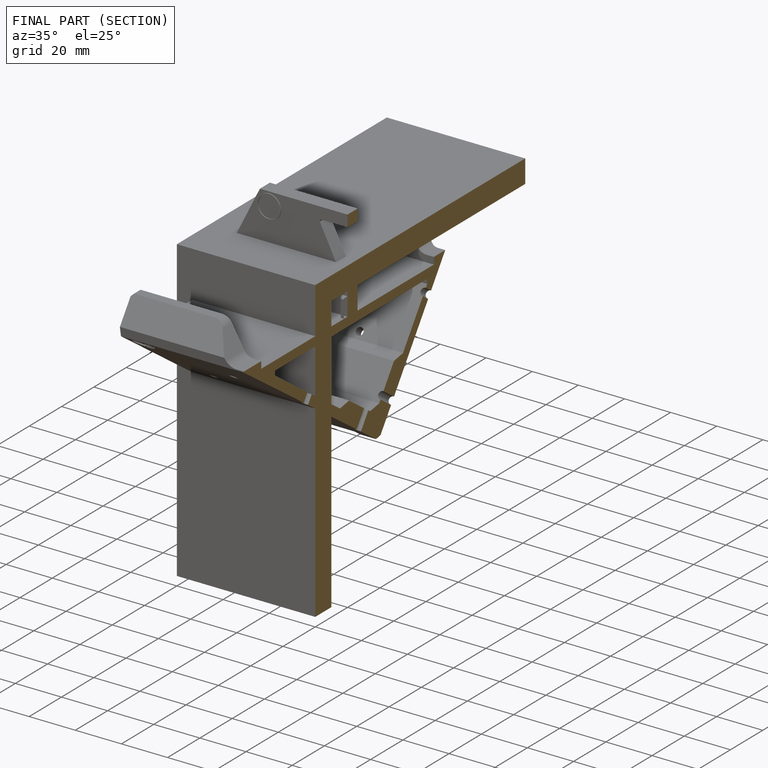
[diagram: finished part — half-section view (interior)]
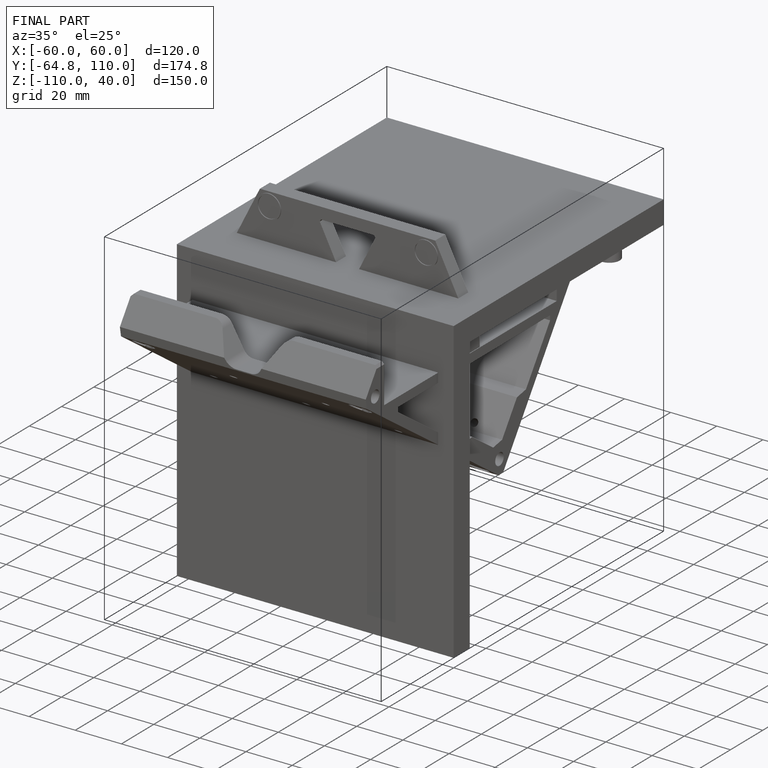
[diagram: finished part — iso view with bounding-box wireframe]
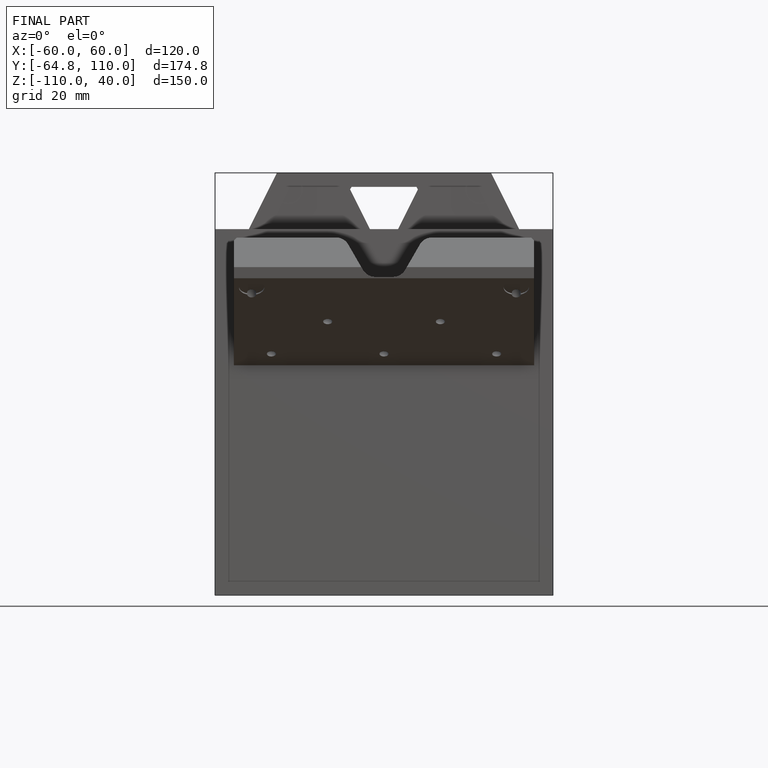
[diagram: finished part — front view with bounding-box wireframe]
